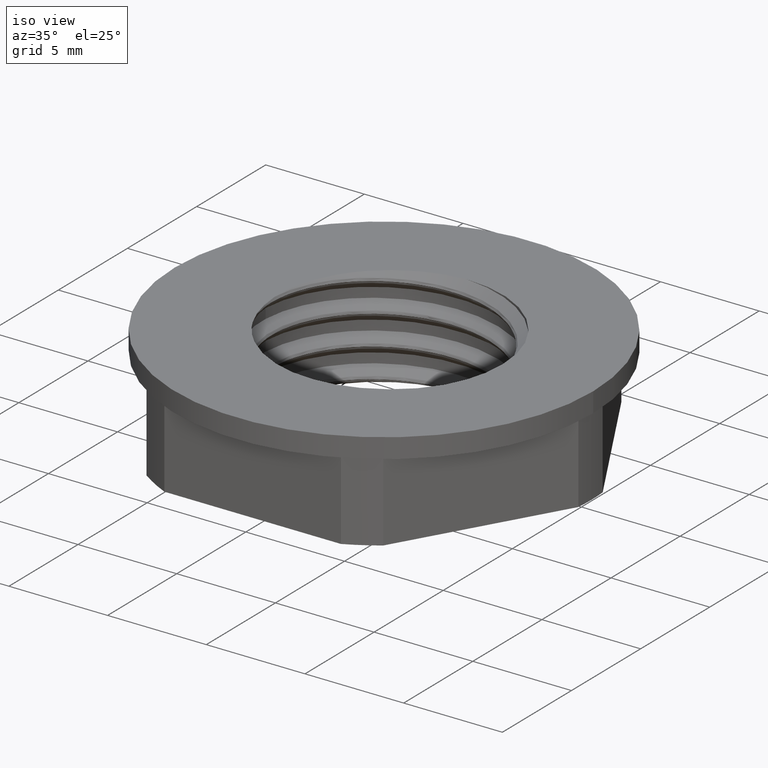
[diagram: clean part render]
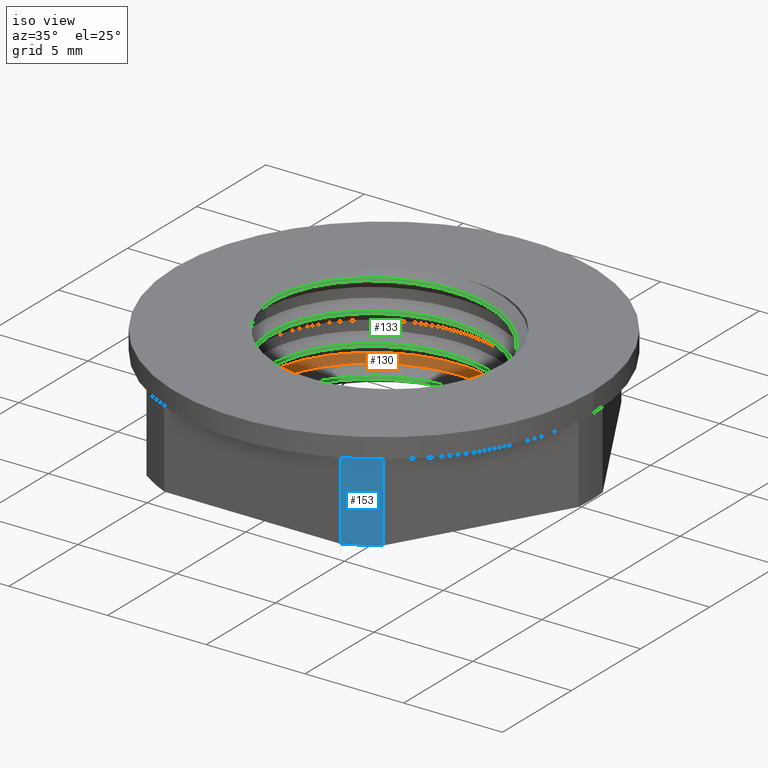
[diagram: same view with three faces highlighted in distinct colors, each labeled with its STEP entity id]
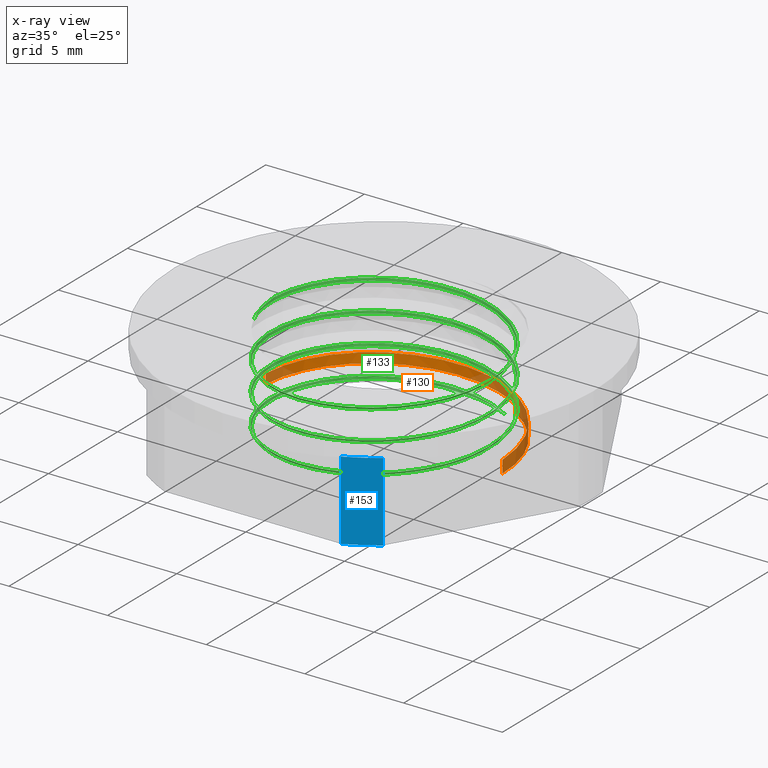
[diagram: x-ray of the same camera — body ghosted, the three highlighted faces saturated]
A machine part, iso view with three faces highlighted in distinct colors.
The next image is the same camera in x-ray (body ghosted, the three faces saturated) — at least one of them is partly hidden behind the body in this view.
Their STEP definitions:

[orange] entity #130 — the highlighted cylindrical surface (partial cylindrical patch) has radius 6 mm, axis along (-0, -0, -1).
#10 = VECTOR ( 'NONE', #358, 1000.000000000000000 ) ;
#11 = AXIS2_PLACEMENT_3D ( 'NONE', #1034, #280, #281 ) ;
#50 = AXIS2_PLACEMENT_3D ( 'NONE', #2236, #2254, #2250 ) ;
#55 = VECTOR ( 'NONE', #2293, 1000.000000000000000 ) ;
#61 = CIRCLE ( 'NONE', #50, 6.000000000000000900 ) ;
#112 = VECTOR ( 'NONE', #1137, 1000.000000000000000 ) ;
#130 = ADVANCED_FACE ( 'NONE', ( #273 ), #1031, .F. ) ;
#132 = EDGE_CURVE ( 'NONE', #846, #827, #338, .T. ) ;
#179 = EDGE_CURVE ( 'NONE', #827, #824, #2610, .T. ) ;
#198 = EDGE_CURVE ( 'NONE', #825, #823, #61, .T. ) ;
#199 = EDGE_CURVE ( 'NONE', #835, #846, #2593, .T. ) ;
#203 = EDGE_CURVE ( 'NONE', #835, #823, #2290, .T. ) ;
#231 = EDGE_CURVE ( 'NONE', #825, #824, #1067, .T. ) ;
#272 = EDGE_LOOP ( 'NONE', ( #987, #279, #1019, #1027, #1004, #308 ) ) ;
#273 = FACE_OUTER_BOUND ( 'NONE', #272, .T. ) ;
#279 = ORIENTED_EDGE ( 'NONE', *, *, #199, .T. ) ;
#280 = DIRECTION ( 'NONE',  ( -0.0000000000000000000, -0.0000000000000000000, -1.000000000000000000 ) ) ;
#281 = DIRECTION ( 'NONE',  ( -1.000000000000000000, 0.0000000000000000000, 0.0000000000000000000 ) ) ;
#308 = ORIENTED_EDGE ( 'NONE', *, *, #198, .T. ) ;
#338 = LINE ( 'NONE', #342, #10 ) ;
#342 = CARTESIAN_POINT ( 'NONE',  ( -6.000000000000000900, 0.0000000000000000000, 10.00000000000000000 ) ) ;
#358 = DIRECTION ( 'NONE',  ( -0.0000000000000000000, -0.0000000000000000000, -1.000000000000000000 ) ) ;
#823 = VERTEX_POINT ( 'NONE', #1216 ) ;
#824 = VERTEX_POINT ( 'NONE', #1223 ) ;
#825 = VERTEX_POINT ( 'NONE', #1235 ) ;
#827 = VERTEX_POINT ( 'NONE', #1267 ) ;
#835 = VERTEX_POINT ( 'NONE', #1246 ) ;
#846 = VERTEX_POINT ( 'NONE', #1250 ) ;
#987 = ORIENTED_EDGE ( 'NONE', *, *, #203, .F. ) ;
#1004 = ORIENTED_EDGE ( 'NONE', *, *, #231, .F. ) ;
#1019 = ORIENTED_EDGE ( 'NONE', *, *, #132, .T. ) ;
#1027 = ORIENTED_EDGE ( 'NONE', *, *, #179, .T. ) ;
#1031 = CYLINDRICAL_SURFACE ( 'NONE', #11, 6.000000000000000900 ) ;
#1034 = CARTESIAN_POINT ( 'NONE',  ( 0.0000000000000000000, 0.0000000000000000000, 10.00000000000000000 ) ) ;
#1067 = LINE ( 'NONE', #1068, #112 ) ;
#1068 = CARTESIAN_POINT ( 'NONE',  ( 3.000123449500724500, 5.196081147148866800, 10.00000000000000000 ) ) ;
#1137 = DIRECTION ( 'NONE',  ( 0.0000000000000000000, 0.0000000000000000000, 1.000000000000000000 ) ) ;
#1216 = CARTESIAN_POINT ( 'NONE',  ( 6.000000000000000900, 7.347880794884120700E-016, 0.0000000000000000000 ) ) ;
#1223 = CARTESIAN_POINT ( 'NONE',  ( 3.000123449500724500, 5.196081147148867700, 0.3745717986213496500 ) ) ;
#1235 = CARTESIAN_POINT ( 'NONE',  ( 3.000123449500725000, 5.196081147148867700, 0.0000000000000000000 ) ) ;
#1246 = CARTESIAN_POINT ( 'NONE',  ( 6.000000000000000900, 1.122276860965852100E-016, 0.6261490073395348200 ) ) ;
#1250 = CARTESIAN_POINT ( 'NONE',  ( -6.000000000000001800, 4.040196699477066700E-015, 1.376149007339533900 ) ) ;
#1267 = CARTESIAN_POINT ( 'NONE',  ( -6.000000000000000900, 3.366830582897556400E-016, 0.8753039482061825100 ) ) ;
#2099 = CARTESIAN_POINT ( 'NONE',  ( -3.953389325572113300, 5.152410731840936000, 0.6558217986213491500 ) ) ;
#2100 = CARTESIAN_POINT ( 'NONE',  ( -6.000000000000000900, 3.366830582897556400E-016, 0.8753039482061824000 ) ) ;
#2122 = CARTESIAN_POINT ( 'NONE',  ( -5.196081147148867700, 3.000123449500725400, 0.7495717986213490400 ) ) ;
#2125 = CARTESIAN_POINT ( 'NONE',  ( -1.552776579205799700, 5.795591850283278400, 0.5620717986213492600 ) ) ;
#2127 = CARTESIAN_POINT ( 'NONE',  ( 3.000123449500724500, 5.196081147148867700, 0.3745717986213496500 ) ) ;
#2134 = CARTESIAN_POINT ( 'NONE',  ( 0.8478361671605135800, 6.438772968725619900, 0.4683217986213495400 ) ) ;
#2147 = CARTESIAN_POINT ( 'NONE',  ( -6.000000000000002700, 1.607771546170717400, 0.8102202966207696600 ) ) ;
#2201 = CARTESIAN_POINT ( 'NONE',  ( -1.552776579205799300, 5.795591850283278400, 1.062916857754700800 ) ) ;
#2202 = CARTESIAN_POINT ( 'NONE',  ( -3.953389325572113300, 5.152410731840936000, 1.156666857754700600 ) ) ;
#2203 = CARTESIAN_POINT ( 'NONE',  ( -5.196081147148867700, 3.000123449500725400, 1.250416857754700400 ) ) ;
#2204 = CARTESIAN_POINT ( 'NONE',  ( -6.000000000000000900, 1.607771546170718900, 1.311065355754121200 ) ) ;
#2205 = CARTESIAN_POINT ( 'NONE',  ( -6.000000000000001800, 4.040196699477066700E-015, 1.376149007339533900 ) ) ;
#2220 = CARTESIAN_POINT ( 'NONE',  ( 6.000000000000000900, 1.122276860965852100E-016, 0.6261490073395348200 ) ) ;
#2221 = CARTESIAN_POINT ( 'NONE',  ( 5.795591850283278400, 1.552776579205798600, 0.6879168577547012400 ) ) ;
#2224 = CARTESIAN_POINT ( 'NONE',  ( 0.8478361671605135800, 6.438772968725619900, 0.9691668577547010200 ) ) ;
#2232 = CARTESIAN_POINT ( 'NONE',  ( 6.000000000000000000, 0.7898424761968216900, 0.6581223512207524700 ) ) ;
#2235 = CARTESIAN_POINT ( 'NONE',  ( 5.152410731840936900, 3.953389325572110600, 0.7816668577547012400 ) ) ;
#2236 = CARTESIAN_POINT ( 'NONE',  ( 0.0000000000000000000, 0.0000000000000000000, 0.0000000000000000000 ) ) ;
#2250 = DIRECTION ( 'NONE',  ( -1.000000000000000000, 0.0000000000000000000, 0.0000000000000000000 ) ) ;
#2251 = CARTESIAN_POINT ( 'NONE',  ( 3.000123449500724500, 5.196081147148867700, 0.8754168577547010200 ) ) ;
#2254 = DIRECTION ( 'NONE',  ( 0.0000000000000000000, 0.0000000000000000000, -1.000000000000000000 ) ) ;
#2283 = CARTESIAN_POINT ( 'NONE',  ( 6.000000000000000900, 7.347880794884120700E-016, 10.00000000000000000 ) ) ;
#2290 = LINE ( 'NONE', #2283, #55 ) ;
#2293 = DIRECTION ( 'NONE',  ( -0.0000000000000000000, -0.0000000000000000000, -1.000000000000000000 ) ) ;
#2593 =( BOUNDED_CURVE ( )  B_SPLINE_CURVE ( 2, ( #2220, #2232, #2221, #2235, #2251, #2224, #2201, #2202, #2203, #2204, #2205 ),
 .UNSPECIFIED., .F., .T. ) 
 B_SPLINE_CURVE_WITH_KNOTS ( ( 3, 2, 2, 2, 2, 3 ),
 ( 0.1666196151937993400, 0.1749999999999999900, 0.2000000000000000100, 0.2250000000000000100, 0.2500000000000000000, 0.2666196151937993400 ),
 .UNSPECIFIED. ) 
 CURVE ( )  GEOMETRIC_REPRESENTATION_ITEM ( )  RATIONAL_B_SPLINE_CURVE ( ( 0.9660737115727577900, 0.9744832476326679100, 1.000000000000000000, 0.9238795325112867400, 1.000000000000000000, 0.9238795325112867400, 1.000000000000000000, 0.9238795325112867400, 1.000000000000000000, 0.9493962848786189300, 0.9660737115727575700 ) ) 
 REPRESENTATION_ITEM ( '' )  );
#2610 =( BOUNDED_CURVE ( )  B_SPLINE_CURVE ( 2, ( #2100, #2147, #2122, #2099, #2125, #2134, #2127 ),
 .UNSPECIFIED., .F., .T. ) 
 B_SPLINE_CURVE_WITH_KNOTS ( ( 3, 2, 2, 3 ),
 ( 0.9333803848062006700, 0.9499999999999999600, 0.9749999999999999800, 1.000000000000000000 ),
 .UNSPECIFIED. ) 
 CURVE ( )  GEOMETRIC_REPRESENTATION_ITEM ( )  RATIONAL_B_SPLINE_CURVE ( ( 0.9660737115727577900, 0.9493962848786188200, 1.000000000000000000, 0.9238795325112867400, 1.000000000000000000, 0.9238795325112867400, 1.000000000000000000 ) ) 
 REPRESENTATION_ITEM ( '' )  );

[blue] entity #153 — the highlighted cylindrical surface (partial cylindrical patch) has radius 10.5 mm, axis along (0, 0, 1).
#23 = AXIS2_PLACEMENT_3D ( 'NONE', #1537, #1560, #1564 ) ;
#91 = AXIS2_PLACEMENT_3D ( 'NONE', #1187, #1190, #1206 ) ;
#99 = AXIS2_PLACEMENT_3D ( 'NONE', #2404, #2393, #2377 ) ;
#102 = CIRCLE ( 'NONE', #91, 10.50000000000000000 ) ;
#107 = CIRCLE ( 'NONE', #99, 10.50000000000000000 ) ;
#110 = VECTOR ( 'NONE', #1209, 1000.000000000000000 ) ;
#114 = VECTOR ( 'NONE', #1229, 1000.000000000000000 ) ;
#153 = ADVANCED_FACE ( 'NONE', ( #1529 ), #1533, .T. ) ;
#220 = EDGE_CURVE ( 'NONE', #871, #900, #107, .T. ) ;
#236 = EDGE_CURVE ( 'NONE', #892, #907, #102, .T. ) ;
#239 = EDGE_CURVE ( 'NONE', #900, #892, #1208, .T. ) ;
#247 = EDGE_CURVE ( 'NONE', #907, #871, #1231, .T. ) ;
#314 = EDGE_LOOP ( 'NONE', ( #1026, #962, #1014, #1022 ) ) ;
#871 = VERTEX_POINT ( 'NONE', #1242 ) ;
#892 = VERTEX_POINT ( 'NONE', #1218 ) ;
#900 = VERTEX_POINT ( 'NONE', #1288 ) ;
#907 = VERTEX_POINT ( 'NONE', #1298 ) ;
#962 = ORIENTED_EDGE ( 'NONE', *, *, #236, .T. ) ;
#1014 = ORIENTED_EDGE ( 'NONE', *, *, #247, .T. ) ;
#1022 = ORIENTED_EDGE ( 'NONE', *, *, #220, .T. ) ;
#1026 = ORIENTED_EDGE ( 'NONE', *, *, #239, .T. ) ;
#1187 = CARTESIAN_POINT ( 'NONE',  ( 0.0000000000000000000, 0.0000000000000000000, 4.000000000000000000 ) ) ;
#1190 = DIRECTION ( 'NONE',  ( -0.0000000000000000000, -0.0000000000000000000, -1.000000000000000000 ) ) ;
#1198 = CARTESIAN_POINT ( 'NONE',  ( 5.991173358452389400, -8.622983346207409000, 0.0000000000000000000 ) ) ;
#1206 = DIRECTION ( 'NONE',  ( 1.000000000000000000, 0.0000000000000000000, 0.0000000000000000000 ) ) ;
#1208 = LINE ( 'NONE', #1198, #110 ) ;
#1209 = DIRECTION ( 'NONE',  ( 0.0000000000000000000, 0.0000000000000000000, 1.000000000000000000 ) ) ;
#1218 = CARTESIAN_POINT ( 'NONE',  ( 5.991173358452393800, -8.622983346207407300, 4.000000000000000000 ) ) ;
#1229 = DIRECTION ( 'NONE',  ( -0.0000000000000000000, 0.0000000000000000000, -1.000000000000000000 ) ) ;
#1231 = LINE ( 'NONE', #1248, #114 ) ;
#1242 = CARTESIAN_POINT ( 'NONE',  ( 4.472135954999546700, -9.500000000000016000, 0.0000000000000000000 ) ) ;
#1248 = CARTESIAN_POINT ( 'NONE',  ( 4.472135954999546700, -9.500000000000016000, 5.000000000000000000 ) ) ;
#1288 = CARTESIAN_POINT ( 'NONE',  ( 5.991173358452390300, -8.622983346207410800, 0.0000000000000000000 ) ) ;
#1298 = CARTESIAN_POINT ( 'NONE',  ( 4.472135954999546700, -9.500000000000016000, 4.000000000000000000 ) ) ;
#1529 = FACE_OUTER_BOUND ( 'NONE', #314, .T. ) ;
#1533 = CYLINDRICAL_SURFACE ( 'NONE', #23, 10.50000000000000000 ) ;
#1537 = CARTESIAN_POINT ( 'NONE',  ( 0.0000000000000000000, 0.0000000000000000000, 0.0000000000000000000 ) ) ;
#1560 = DIRECTION ( 'NONE',  ( 0.0000000000000000000, 0.0000000000000000000, 1.000000000000000000 ) ) ;
#1564 = DIRECTION ( 'NONE',  ( 1.000000000000000000, 0.0000000000000000000, 0.0000000000000000000 ) ) ;
#2377 = DIRECTION ( 'NONE',  ( 1.000000000000000000, 0.0000000000000000000, 0.0000000000000000000 ) ) ;
#2393 = DIRECTION ( 'NONE',  ( 0.0000000000000000000, 0.0000000000000000000, 1.000000000000000000 ) ) ;
#2404 = CARTESIAN_POINT ( 'NONE',  ( 0.0000000000000000000, 0.0000000000000000000, 0.0000000000000000000 ) ) ;

[green] entity #133 — the highlighted face is a freeform B-spline surface patch.
#133 = ADVANCED_FACE ( 'NONE', ( #337 ), #2590, .F. ) ;
#178 = EDGE_CURVE ( 'NONE', #866, #901, #2613, .T. ) ;
#201 = EDGE_CURVE ( 'NONE', #843, #866, #1041, .T. ) ;
#225 = EDGE_CURVE ( 'NONE', #901, #833, #1043, .T. ) ;
#235 = EDGE_CURVE ( 'NONE', #843, #833, #2594, .T. ) ;
#296 = EDGE_LOOP ( 'NONE', ( #856, #857, #870, #953 ) ) ;
#320 = CARTESIAN_POINT ( 'NONE',  ( 4.769055794689133000, 3.659245206378450200, 4.406232500777297100 ) ) ;
#321 = CARTESIAN_POINT ( 'NONE',  ( 2.776905193758120800, 4.809476999057354300, 4.499982500777298000 ) ) ;
#322 = CARTESIAN_POINT ( 'NONE',  ( 0.7847545928271111300, 5.959708791736255200, 4.593732500777297100 ) ) ;
#323 = CARTESIAN_POINT ( 'NONE',  ( 0.7847545928271111300, 5.959708791736255200, 1.593732500777301800 ) ) ;
#324 = CARTESIAN_POINT ( 'NONE',  ( 5.364382293212693200, 1.437245306775669600, 2.812482500777299800 ) ) ;
#325 = CARTESIAN_POINT ( 'NONE',  ( -1.437245306775670500, 5.364382293212693200, 4.687482500777298000 ) ) ;
#326 = CARTESIAN_POINT ( 'NONE',  ( -1.437245306775670500, 5.364382293212693200, 3.187482500777299300 ) ) ;
#327 = CARTESIAN_POINT ( 'NONE',  ( 2.776905193758120800, 4.809476999057354300, -1.749922269615115500E-005 ) ) ;
#328 = CARTESIAN_POINT ( 'NONE',  ( -0.7847545928271130200, -5.959708791736255200, 3.843732500777298400 ) ) ;
#329 = CARTESIAN_POINT ( 'NONE',  ( 5.959708791736254300, -0.7847545928271100200, 4.218732500777298000 ) ) ;
#330 = CARTESIAN_POINT ( 'NONE',  ( -3.659245206378452900, 4.769055794689130300, 4.781232500777297100 ) ) ;
#331 = CARTESIAN_POINT ( 'NONE',  ( -4.809476999057354300, 2.776905193758121300, 4.874982500777297100 ) ) ;
#332 = CARTESIAN_POINT ( 'NONE',  ( -1.437245306775670500, 5.364382293212693200, 1.687482500777301600 ) ) ;
#333 = CARTESIAN_POINT ( 'NONE',  ( -4.809476999057354300, 2.776905193758121300, 1.874982500777301100 ) ) ;
#334 = CARTESIAN_POINT ( 'NONE',  ( -4.769055794689130300, -3.659245206378452900, 0.6562325007773028900 ) ) ;
#335 = CARTESIAN_POINT ( 'NONE',  ( -4.809476999057354300, 2.776905193758121300, 3.374982500777298900 ) ) ;
#336 = CARTESIAN_POINT ( 'NONE',  ( -4.769055794689130300, -3.659245206378452900, 3.656232500777298000 ) ) ;
#337 = FACE_OUTER_BOUND ( 'NONE', #296, .T. ) ;
#339 = CARTESIAN_POINT ( 'NONE',  ( 3.659245206378450600, -4.769055794689132100, 1.031232500777302400 ) ) ;
#340 = CARTESIAN_POINT ( 'NONE',  ( 5.959708791736254300, -0.7847545928271100200, 1.218732500777302000 ) ) ;
#343 = CARTESIAN_POINT ( 'NONE',  ( -2.776905193758121300, -4.809476999057354300, 0.7499825007773027700 ) ) ;
#345 = CARTESIAN_POINT ( 'NONE',  ( -1.437245306775670500, 5.364382293212693200, 0.1874825007773035800 ) ) ;
#346 = CARTESIAN_POINT ( 'NONE',  ( -3.659245206378452900, 4.769055794689130300, 0.2812325007773034400 ) ) ;
#347 = CARTESIAN_POINT ( 'NONE',  ( 5.364382293212693200, 1.437245306775669600, 1.312482500777302000 ) ) ;
#348 = CARTESIAN_POINT ( 'NONE',  ( -5.959708791736254300, 0.7847545928271115700, 1.968732500777301100 ) ) ;
#349 = CARTESIAN_POINT ( 'NONE',  ( -3.659245206378452900, 4.769055794689130300, 1.781232500777301600 ) ) ;
#350 = CARTESIAN_POINT ( 'NONE',  ( 1.437245306775670100, -5.364382293212693200, 0.9374825007773025500 ) ) ;
#351 = CARTESIAN_POINT ( 'NONE',  ( -4.809476999057354300, 2.776905193758121300, 0.3749825007773032700 ) ) ;
#352 = CARTESIAN_POINT ( 'NONE',  ( -0.7847545928271130200, -5.959708791736255200, 0.8437325007773027700 ) ) ;
#353 = CARTESIAN_POINT ( 'NONE',  ( -5.364382293212693200, -1.437245306775670500, 2.062482500777300700 ) ) ;
#354 = CARTESIAN_POINT ( 'NONE',  ( -5.364382293212693200, -1.437245306775670500, 0.5624825007773031100 ) ) ;
#355 = CARTESIAN_POINT ( 'NONE',  ( -2.776905193758121300, -4.809476999057354300, 2.249982500777300700 ) ) ;
#356 = CARTESIAN_POINT ( 'NONE',  ( -0.7847545928271130200, -5.959708791736255200, 2.343732500777300700 ) ) ;
#357 = CARTESIAN_POINT ( 'NONE',  ( 4.809476999057353400, -2.776905193758121700, 2.624982500777299800 ) ) ;
#359 = CARTESIAN_POINT ( 'NONE',  ( 5.959708791736254300, -0.7847545928271100200, 2.718732500777299800 ) ) ;
#360 = CARTESIAN_POINT ( 'NONE',  ( 4.769055794689133000, 3.659245206378450200, 2.906232500777299800 ) ) ;
#361 = CARTESIAN_POINT ( 'NONE',  ( 2.776905193758120800, 4.809476999057354300, 2.999982500777299300 ) ) ;
#362 = CARTESIAN_POINT ( 'NONE',  ( 0.7847545928271111300, 5.959708791736255200, 3.093732500777299300 ) ) ;
#363 = CARTESIAN_POINT ( 'NONE',  ( -5.364382293212693200, -1.437245306775670500, 3.562482500777298400 ) ) ;
#365 = CARTESIAN_POINT ( 'NONE',  ( -5.959708791736254300, 0.7847545928271115700, 0.4687325007773031600 ) ) ;
#366 = CARTESIAN_POINT ( 'NONE',  ( 3.659245206378450600, -4.769055794689132100, 2.531232500777299800 ) ) ;
#367 = CARTESIAN_POINT ( 'NONE',  ( -2.776905193758121300, -4.809476999057354300, 3.749982500777298400 ) ) ;
#368 = CARTESIAN_POINT ( 'NONE',  ( -3.659245206378452900, 4.769055794689130300, 3.281232500777299300 ) ) ;
#369 = CARTESIAN_POINT ( 'NONE',  ( 1.437245306775670100, -5.364382293212693200, 3.937482500777298900 ) ) ;
#370 = CARTESIAN_POINT ( 'NONE',  ( 4.769055794689133000, 3.659245206378450200, 1.406232500777302000 ) ) ;
#371 = CARTESIAN_POINT ( 'NONE',  ( 2.776905193758120800, 4.809476999057354300, 1.499982500777301800 ) ) ;
#372 = CARTESIAN_POINT ( 'NONE',  ( -5.959708791736254300, 0.7847545928271115700, 3.468732500777299800 ) ) ;
#373 = CARTESIAN_POINT ( 'NONE',  ( 4.809476999057353400, -2.776905193758121700, 1.124982500777302200 ) ) ;
#374 = CARTESIAN_POINT ( 'NONE',  ( 3.659245206378450600, -4.769055794689132100, 4.031232500777298000 ) ) ;
#375 = CARTESIAN_POINT ( 'NONE',  ( 4.809476999057353400, -2.776905193758121700, 4.124982500777298000 ) ) ;
#376 = CARTESIAN_POINT ( 'NONE',  ( 5.364382293212693200, 1.437245306775669600, 4.312482500777297100 ) ) ;
#377 = CARTESIAN_POINT ( 'NONE',  ( -4.769055794689130300, -3.659245206378452900, 2.156232500777300200 ) ) ;
#378 = CARTESIAN_POINT ( 'NONE',  ( 0.7847545928271111300, 5.959708791736255200, 0.09373250077730370400 ) ) ;
#380 = CARTESIAN_POINT ( 'NONE',  ( 1.437245306775670100, -5.364382293212693200, 2.437482500777300200 ) ) ;
#381 = CARTESIAN_POINT ( 'NONE',  ( -0.7847545928271130200, -5.959708791736255200, 5.343732500777297100 ) ) ;
#382 = CARTESIAN_POINT ( 'NONE',  ( -4.769055794689130300, -3.659245206378452900, 5.156232500777296200 ) ) ;
#383 = CARTESIAN_POINT ( 'NONE',  ( 1.437245306775670100, -5.364382293212693200, 5.437482500777297100 ) ) ;
#384 = CARTESIAN_POINT ( 'NONE',  ( -5.364382293212693200, -1.437245306775670500, 5.062482500777296200 ) ) ;
#385 = CARTESIAN_POINT ( 'NONE',  ( -5.959708791736254300, 0.7847545928271115700, 4.968732500777297100 ) ) ;
#386 = CARTESIAN_POINT ( 'NONE',  ( -2.776905193758121300, -4.809476999057354300, 5.249982500777296200 ) ) ;
#387 = CARTESIAN_POINT ( 'NONE',  ( 3.659245206378450600, -4.769055794689132100, 5.531232500777295300 ) ) ;
#388 = CARTESIAN_POINT ( 'NONE',  ( 5.959708791736254300, -0.7847545928271100200, 5.718732500777295300 ) ) ;
#389 = CARTESIAN_POINT ( 'NONE',  ( 4.809476999057353400, -2.776905193758121700, 5.624982500777296200 ) ) ;
#390 = CARTESIAN_POINT ( 'NONE',  ( 5.364382293212693200, 1.437245306775669600, 5.812482500777295300 ) ) ;
#391 = CARTESIAN_POINT ( 'NONE',  ( 4.769055794689133000, 3.659245206378450200, 5.906232500777295300 ) ) ;
#392 = CARTESIAN_POINT ( 'NONE',  ( 2.776905193758120800, 4.809476999057354300, 5.999982500777295300 ) ) ;
#393 = CARTESIAN_POINT ( 'NONE',  ( 0.7847545928271111300, 5.959708791736255200, 6.093732500777295300 ) ) ;
#394 = CARTESIAN_POINT ( 'NONE',  ( -1.437245306775670500, 5.364382293212693200, 6.187482500777295300 ) ) ;
#395 = CARTESIAN_POINT ( 'NONE',  ( -3.659245206378452900, 4.769055794689130300, 6.281232500777297100 ) ) ;
#396 = CARTESIAN_POINT ( 'NONE',  ( -4.809476999057354300, 2.776905193758121300, 6.374982500777295300 ) ) ;
#397 = CARTESIAN_POINT ( 'NONE',  ( -5.364382293212693200, -1.437245306775670500, 6.562482500777294400 ) ) ;
#398 = CARTESIAN_POINT ( 'NONE',  ( -2.776905193758121300, -4.809476999057354300, 6.749982500777294400 ) ) ;
#399 = CARTESIAN_POINT ( 'NONE',  ( 1.437245306775670100, -5.364382293212693200, 6.937482500777294400 ) ) ;
#400 = CARTESIAN_POINT ( 'NONE',  ( 3.659245206378450600, -4.769055794689132100, 7.031232500777295300 ) ) ;
#401 = CARTESIAN_POINT ( 'NONE',  ( 4.809476999057353400, -2.776905193758121700, 7.124982500777293600 ) ) ;
#402 = CARTESIAN_POINT ( 'NONE',  ( 5.364382293212693200, 1.437245306775669600, 7.312482500777293600 ) ) ;
#403 = CARTESIAN_POINT ( 'NONE',  ( 4.769055794689133000, 3.659245206378450200, 7.406232500777292700 ) ) ;
#404 = CARTESIAN_POINT ( 'NONE',  ( 2.776905193758120800, 4.809476999057354300, 7.499982500777293600 ) ) ;
#405 = CARTESIAN_POINT ( 'NONE',  ( 2.759638826325341300, 4.779572414193641100, -0.02899271198674650100 ) ) ;
#406 = CARTESIAN_POINT ( 'NONE',  ( -1.428308737528147800, 5.331027392968815400, 0.1585072880132532300 ) ) ;
#407 = CARTESIAN_POINT ( 'NONE',  ( 5.959708791736254300, -0.7847545928271100200, 7.218732500777295300 ) ) ;
#408 = CARTESIAN_POINT ( 'NONE',  ( 0.7798751100220184800, 5.922652243308966100, 0.06475728801325335300 ) ) ;
#409 = CARTESIAN_POINT ( 'NONE',  ( -4.779572414193641100, 2.759638826325341700, 0.3460072880132529800 ) ) ;
#410 = CARTESIAN_POINT ( 'NONE',  ( -3.636492585078313900, 4.739402542628663900, 0.2522572880132530300 ) ) ;
#411 = CARTESIAN_POINT ( 'NONE',  ( -5.922652243308966100, 0.7798751100220184800, 0.4397572880132527000 ) ) ;
#412 = CARTESIAN_POINT ( 'NONE',  ( -4.769055794689130300, -3.659245206378452900, 6.656232500777295300 ) ) ;
#413 = CARTESIAN_POINT ( 'NONE',  ( -5.959708791736254300, 0.7847545928271115700, 6.468732500777296200 ) ) ;
#414 = CARTESIAN_POINT ( 'NONE',  ( -0.7847545928271130200, -5.959708791736255200, 6.843732500777296200 ) ) ;
#415 = CARTESIAN_POINT ( 'NONE',  ( -5.331027392968815400, -1.428308737528147800, 0.5335072880132526500 ) ) ;
#416 = CARTESIAN_POINT ( 'NONE',  ( -4.739402542628663900, -3.636492585078313900, 0.6272572880132524200 ) ) ;
#417 = CARTESIAN_POINT ( 'NONE',  ( 1.428308737528147400, -5.331027392968815400, 5.408507288013244500 ) ) ;
#418 = CARTESIAN_POINT ( 'NONE',  ( -5.922652243308966100, 0.7798751100220184800, 1.939757288013250800 ) ) ;
#419 = CARTESIAN_POINT ( 'NONE',  ( 3.636492585078311600, -4.739402542628665700, 5.502257288013245400 ) ) ;
#420 = CARTESIAN_POINT ( 'NONE',  ( 4.779572414193640200, -2.759638826325342200, 5.596007288013244500 ) ) ;
#421 = CARTESIAN_POINT ( 'NONE',  ( 2.759638826325341300, 4.779572414193641100, 2.971007288013249400 ) ) ;
#422 = CARTESIAN_POINT ( 'NONE',  ( -4.739402542628663900, -3.636492585078313900, 3.627257288013247600 ) ) ;
#423 = CARTESIAN_POINT ( 'NONE',  ( -5.331027392968815400, -1.428308737528147800, 2.033507288013250800 ) ) ;
#424 = CARTESIAN_POINT ( 'NONE',  ( 3.636492585078311600, -4.739402542628665700, 2.502257288013249900 ) ) ;
#425 = CARTESIAN_POINT ( 'NONE',  ( 3.636492585078311600, -4.739402542628665700, 4.002257288013246300 ) ) ;
#426 = CARTESIAN_POINT ( 'NONE',  ( -5.922652243308966100, 0.7798751100220184800, 4.939757288013245400 ) ) ;
#427 = CARTESIAN_POINT ( 'NONE',  ( 5.922652243308965200, -0.7798751100220169300, 2.689757288013249400 ) ) ;
#428 = CARTESIAN_POINT ( 'NONE',  ( 4.739402542628665700, 3.636492585078311600, 1.377257288013251200 ) ) ;
#429 = CARTESIAN_POINT ( 'NONE',  ( -1.428308737528147800, 5.331027392968815400, 3.158507288013248500 ) ) ;
#430 = CARTESIAN_POINT ( 'NONE',  ( -5.922652243308966100, 0.7798751100220184800, 3.439757288013248100 ) ) ;
#431 = CARTESIAN_POINT ( 'NONE',  ( -4.779572414193641100, 2.759638826325341700, 4.846007288013246300 ) ) ;
#432 = CARTESIAN_POINT ( 'NONE',  ( -2.759638826325341700, -4.779572414193641100, 0.7210072880132523100 ) ) ;
#433 = CARTESIAN_POINT ( 'NONE',  ( 1.428308737528147400, -5.331027392968815400, 2.408507288013250300 ) ) ;
#434 = CARTESIAN_POINT ( 'NONE',  ( 4.779572414193640200, -2.759638826325342200, 4.096007288013247200 ) ) ;
#435 = CARTESIAN_POINT ( 'NONE',  ( -3.636492585078313900, 4.739402542628663900, 1.752257288013250800 ) ) ;
#436 = CARTESIAN_POINT ( 'NONE',  ( -4.779572414193641100, 2.759638826325341700, 1.846007288013251000 ) ) ;
#437 = CARTESIAN_POINT ( 'NONE',  ( -4.779572414193641100, 2.759638826325341700, 3.346007288013249000 ) ) ;
#438 = CARTESIAN_POINT ( 'NONE',  ( -0.7798751100220199200, -5.922652243308966100, 0.8147572880132522000 ) ) ;
#439 = CARTESIAN_POINT ( 'NONE',  ( 2.759638826325341300, 4.779572414193641100, 4.471007288013246300 ) ) ;
#440 = CARTESIAN_POINT ( 'NONE',  ( -5.331027392968815400, -1.428308737528147800, 5.033507288013245400 ) ) ;
#441 = CARTESIAN_POINT ( 'NONE',  ( -4.739402542628663900, -3.636492585078313900, 5.127257288013245400 ) ) ;
#442 = CARTESIAN_POINT ( 'NONE',  ( -5.331027392968815400, -1.428308737528147800, 3.533507288013248100 ) ) ;
#443 = CARTESIAN_POINT ( 'NONE',  ( -0.7798751100220199200, -5.922652243308966100, 3.814757288013248100 ) ) ;
#444 = CARTESIAN_POINT ( 'NONE',  ( 5.922652243308965200, -0.7798751100220169300, 5.689757288013245400 ) ) ;
#445 = CARTESIAN_POINT ( 'NONE',  ( 5.331027392968815400, 1.428308737528146500, 2.783507288013249900 ) ) ;
#446 = CARTESIAN_POINT ( 'NONE',  ( 4.779572414193640200, -2.759638826325342200, 2.596007288013249900 ) ) ;
#447 = CARTESIAN_POINT ( 'NONE',  ( -4.739402542628663900, -3.636492585078313900, 2.127257288013250300 ) ) ;
#448 = CARTESIAN_POINT ( 'NONE',  ( 4.779572414193640200, -2.759638826325342200, 1.096007288013251600 ) ) ;
#449 = CARTESIAN_POINT ( 'NONE',  ( 5.331027392968815400, 1.428308737528146500, 1.283507288013251200 ) ) ;
#450 = CARTESIAN_POINT ( 'NONE',  ( 1.428308737528147400, -5.331027392968815400, 0.9085072880132522000 ) ) ;
#451 = CARTESIAN_POINT ( 'NONE',  ( 2.759638826325341300, 4.779572414193641100, 1.471007288013251400 ) ) ;
#452 = CARTESIAN_POINT ( 'NONE',  ( 4.739402542628665700, 3.636492585078311600, 2.877257288013249000 ) ) ;
#453 = CARTESIAN_POINT ( 'NONE',  ( 3.636492585078311600, -4.739402542628665700, 1.002257288013252100 ) ) ;
#454 = CARTESIAN_POINT ( 'NONE',  ( 5.922652243308965200, -0.7798751100220169300, 1.189757288013251400 ) ) ;
#455 = CARTESIAN_POINT ( 'NONE',  ( 0.7798751100220184800, 5.922652243308966100, 1.564757288013251000 ) ) ;
#456 = CARTESIAN_POINT ( 'NONE',  ( -2.759638826325341700, -4.779572414193641100, 2.221007288013250300 ) ) ;
#457 = CARTESIAN_POINT ( 'NONE',  ( -2.759638826325341700, -4.779572414193641100, 3.721007288013248500 ) ) ;
#458 = CARTESIAN_POINT ( 'NONE',  ( -1.428308737528147800, 5.331027392968815400, 1.658507288013251000 ) ) ;
#459 = CARTESIAN_POINT ( 'NONE',  ( -0.7798751100220199200, -5.922652243308966100, 2.314757288013250800 ) ) ;
#460 = CARTESIAN_POINT ( 'NONE',  ( 0.7798751100220184800, 5.922652243308966100, 3.064757288013248500 ) ) ;
#461 = CARTESIAN_POINT ( 'NONE',  ( 1.428308737528147400, -5.331027392968815400, 3.908507288013248100 ) ) ;
#462 = CARTESIAN_POINT ( 'NONE',  ( 0.7798751100220184800, 5.922652243308966100, 4.564757288013247200 ) ) ;
#463 = CARTESIAN_POINT ( 'NONE',  ( -3.636492585078313900, 4.739402542628663900, 3.252257288013248100 ) ) ;
#464 = CARTESIAN_POINT ( 'NONE',  ( -1.428308737528147800, 5.331027392968815400, 4.658507288013246300 ) ) ;
#465 = CARTESIAN_POINT ( 'NONE',  ( 5.331027392968815400, 1.428308737528146500, 4.283507288013246300 ) ) ;
#466 = CARTESIAN_POINT ( 'NONE',  ( -3.636492585078313900, 4.739402542628663900, 4.752257288013245400 ) ) ;
#467 = CARTESIAN_POINT ( 'NONE',  ( 5.922652243308965200, -0.7798751100220169300, 4.189757288013247200 ) ) ;
#468 = CARTESIAN_POINT ( 'NONE',  ( 4.739402542628665700, 3.636492585078311600, 4.377257288013246300 ) ) ;
#469 = CARTESIAN_POINT ( 'NONE',  ( -2.759638826325341700, -4.779572414193641100, 5.221007288013246300 ) ) ;
#470 = CARTESIAN_POINT ( 'NONE',  ( -0.7798751100220199200, -5.922652243308966100, 5.314757288013243700 ) ) ;
#471 = CARTESIAN_POINT ( 'NONE',  ( 1.423378530938648600, -5.312625862759669600, 0.8676532631948388200 ) ) ;
#472 = CARTESIAN_POINT ( 'NONE',  ( -5.902208554665149300, 0.7771831532304710500, 3.398903263194834600 ) ) ;
#473 = CARTESIAN_POINT ( 'NONE',  ( -3.623940215107769100, 4.723043170854189100, 3.211403263194834600 ) ) ;
#474 = CARTESIAN_POINT ( 'NONE',  ( -5.331027392968815400, -1.428308737528147800, 6.533507288013243700 ) ) ;
#475 = CARTESIAN_POINT ( 'NONE',  ( 2.759638826325341300, 4.779572414193641100, 7.471007288013241900 ) ) ;
#476 = CARTESIAN_POINT ( 'NONE',  ( -1.428308737528147800, 5.331027392968815400, 6.158507288013243700 ) ) ;
#477 = CARTESIAN_POINT ( 'NONE',  ( 2.759638826325341300, 4.779572414193641100, 5.971007288013244500 ) ) ;
#478 = CARTESIAN_POINT ( 'NONE',  ( -0.7798751100220199200, -5.922652243308966100, 6.814757288013243700 ) ) ;
#479 = CARTESIAN_POINT ( 'NONE',  ( -0.7771831532304723800, -5.902208554665150200, 0.7739032631948389300 ) ) ;
#480 = CARTESIAN_POINT ( 'NONE',  ( 0.7771831532304707100, 5.902208554665149300, 0.02390326319483993300 ) ) ;
#481 = CARTESIAN_POINT ( 'NONE',  ( -3.623940215107769100, 4.723043170854189100, 0.2114032631948396500 ) ) ;
#482 = CARTESIAN_POINT ( 'NONE',  ( -1.423378530938648600, 5.312625862759669600, 3.117653263194835500 ) ) ;
#483 = CARTESIAN_POINT ( 'NONE',  ( 0.7771831532304707100, 5.902208554665149300, 1.523903263194837500 ) ) ;
#484 = CARTESIAN_POINT ( 'NONE',  ( 5.312625862759669600, 1.423378530938648200, 2.742653263194835500 ) ) ;
#485 = CARTESIAN_POINT ( 'NONE',  ( 4.739402542628665700, 3.636492585078311600, 5.877257288013243700 ) ) ;
#486 = CARTESIAN_POINT ( 'NONE',  ( -4.763074384886459200, 2.750113162042330900, 0.3051532631948394900 ) ) ;
#487 = CARTESIAN_POINT ( 'NONE',  ( -2.750113162042330900, -4.763074384886459200, 0.6801532631948390400 ) ) ;
#488 = CARTESIAN_POINT ( 'NONE',  ( 5.902208554665149300, -0.7771831532304692700, 1.148903263194837900 ) ) ;
#489 = CARTESIAN_POINT ( 'NONE',  ( -5.902208554665149300, 0.7771831532304710500, 1.898903263194837000 ) ) ;
#490 = CARTESIAN_POINT ( 'NONE',  ( 2.750113162042330500, 4.763074384886459200, 2.930153263194835900 ) ) ;
#491 = CARTESIAN_POINT ( 'NONE',  ( -5.312625862759669600, -1.423378530938648600, 0.4926532631948393200 ) ) ;
#492 = CARTESIAN_POINT ( 'NONE',  ( 0.7771831532304707100, 5.902208554665149300, 3.023903263194835900 ) ) ;
#493 = CARTESIAN_POINT ( 'NONE',  ( 1.423378530938648600, -5.312625862759669600, 2.367653263194835900 ) ) ;
#494 = CARTESIAN_POINT ( 'NONE',  ( 4.763074384886458300, -2.750113162042331400, 2.555153263194836400 ) ) ;
#495 = CARTESIAN_POINT ( 'NONE',  ( -4.763074384886459200, 2.750113162042330900, 3.305153263194835500 ) ) ;
#496 = CARTESIAN_POINT ( 'NONE',  ( -5.312625862759669600, -1.423378530938648600, 3.492653263194834600 ) ) ;
#497 = CARTESIAN_POINT ( 'NONE',  ( -3.623940215107769100, 4.723043170854189100, 1.711403263194837300 ) ) ;
#498 = CARTESIAN_POINT ( 'NONE',  ( 5.902208554665149300, -0.7771831532304692700, 2.648903263194836400 ) ) ;
#499 = CARTESIAN_POINT ( 'NONE',  ( 2.750113162042330500, 4.763074384886459200, 1.430153263194837900 ) ) ;
#500 = CARTESIAN_POINT ( 'NONE',  ( -1.423378530938648600, 5.312625862759669600, 0.1176532631948397900 ) ) ;
#501 = CARTESIAN_POINT ( 'NONE',  ( -1.423378530938648600, 5.312625862759669600, 1.617653263194837300 ) ) ;
#502 = CARTESIAN_POINT ( 'NONE',  ( 5.331027392968815400, 1.428308737528146500, 5.783507288013244500 ) ) ;
#503 = CARTESIAN_POINT ( 'NONE',  ( 3.636492585078311600, -4.739402542628665700, 7.002257288013243700 ) ) ;
#504 = CARTESIAN_POINT ( 'NONE',  ( 3.623940215107766900, -4.723043170854190900, 2.461403263194836400 ) ) ;
#505 = CARTESIAN_POINT ( 'NONE',  ( -4.763074384886459200, 2.750113162042330900, 1.805153263194837000 ) ) ;
#506 = CARTESIAN_POINT ( 'NONE',  ( -4.723043170854189100, -3.623940215107769100, 2.086403263194836400 ) ) ;
#507 = CARTESIAN_POINT ( 'NONE',  ( -2.750113162042330900, -4.763074384886459200, 2.180153263194836800 ) ) ;
#508 = CARTESIAN_POINT ( 'NONE',  ( 4.723043170854191800, 3.623940215107766400, 2.836403263194835000 ) ) ;
#509 = CARTESIAN_POINT ( 'NONE',  ( -4.723043170854189100, -3.623940215107769100, 3.586403263194834200 ) ) ;
#510 = CARTESIAN_POINT ( 'NONE',  ( 2.750113162042330500, 4.763074384886459200, -0.06984673680515991700 ) ) ;
#511 = CARTESIAN_POINT ( 'NONE',  ( -5.922652243308966100, 0.7798751100220184800, 6.439757288013243700 ) ) ;
#512 = CARTESIAN_POINT ( 'NONE',  ( -4.739402542628663900, -3.636492585078313900, 6.627257288013241000 ) ) ;
#513 = CARTESIAN_POINT ( 'NONE',  ( 4.739402542628665700, 3.636492585078311600, 7.377257288013241900 ) ) ;
#514 = CARTESIAN_POINT ( 'NONE',  ( -4.723043170854189100, -3.623940215107769100, 0.5864032631948391500 ) ) ;
#515 = CARTESIAN_POINT ( 'NONE',  ( -5.312625862759669600, -1.423378530938648600, 1.992653263194837000 ) ) ;
#516 = CARTESIAN_POINT ( 'NONE',  ( -2.750113162042330900, -4.763074384886459200, 3.680153263194834200 ) ) ;
#517 = CARTESIAN_POINT ( 'NONE',  ( -0.7771831532304723800, -5.902208554665150200, 3.773903263194834200 ) ) ;
#518 = CARTESIAN_POINT ( 'NONE',  ( 1.423378530938648600, -5.312625862759669600, 3.867653263194835000 ) ) ;
#519 = CARTESIAN_POINT ( 'NONE',  ( -3.636492585078313900, 4.739402542628663900, 6.252257288013243700 ) ) ;
#520 = CARTESIAN_POINT ( 'NONE',  ( 3.623940215107766900, -4.723043170854190900, 0.9614032631948384900 ) ) ;
#521 = CARTESIAN_POINT ( 'NONE',  ( -0.7771831532304723800, -5.902208554665150200, 2.273903263194836400 ) ) ;
#522 = CARTESIAN_POINT ( 'NONE',  ( 0.7798751100220184800, 5.922652243308966100, 6.064757288013243700 ) ) ;
#523 = CARTESIAN_POINT ( 'NONE',  ( 4.763074384886458300, -2.750113162042331400, 1.055153263194838600 ) ) ;
#524 = CARTESIAN_POINT ( 'NONE',  ( -2.759638826325341700, -4.779572414193641100, 6.721007288013241900 ) ) ;
#525 = CARTESIAN_POINT ( 'NONE',  ( 5.312625862759669600, 1.423378530938648200, 1.242653263194838200 ) ) ;
#526 = CARTESIAN_POINT ( 'NONE',  ( 4.723043170854191800, 3.623940215107766400, 1.336403263194838200 ) ) ;
#527 = CARTESIAN_POINT ( 'NONE',  ( 4.779572414193640200, -2.759638826325342200, 7.096007288013242800 ) ) ;
#528 = CARTESIAN_POINT ( 'NONE',  ( 5.922652243308965200, -0.7798751100220169300, 7.189757288013241900 ) ) ;
#529 = CARTESIAN_POINT ( 'NONE',  ( 3.623940215107766900, -4.723043170854190900, 3.961403263194833700 ) ) ;
#530 = CARTESIAN_POINT ( 'NONE',  ( 1.428308737528147400, -5.331027392968815400, 6.908507288013243700 ) ) ;
#531 = CARTESIAN_POINT ( 'NONE',  ( -4.779572414193641100, 2.759638826325341700, 6.346007288013244500 ) ) ;
#532 = CARTESIAN_POINT ( 'NONE',  ( 5.331027392968815400, 1.428308737528146500, 7.283507288013241900 ) ) ;
#533 = CARTESIAN_POINT ( 'NONE',  ( -5.902208554665149300, 0.7771831532304710500, 0.3989032631948393700 ) ) ;
#534 = CARTESIAN_POINT ( 'NONE',  ( 5.902208554665150200, -0.7771831532304693800, 1.103825834309455600 ) ) ;
#535 = CARTESIAN_POINT ( 'NONE',  ( 4.723043170854191800, 3.623940215107766900, 1.291325834309455100 ) ) ;
#536 = CARTESIAN_POINT ( 'NONE',  ( -1.423378530938648600, 5.312625862759669600, 6.117653263194831000 ) ) ;
#537 = CARTESIAN_POINT ( 'NONE',  ( 3.623940215107766900, -4.723043170854190900, 5.461403263194830200 ) ) ;
#538 = CARTESIAN_POINT ( 'NONE',  ( 4.763074384886458300, -2.750113162042331400, 4.055153263194834600 ) ) ;
#539 = CARTESIAN_POINT ( 'NONE',  ( 0.7771831532304707100, 5.902208554665150200, -0.02117416569054305500 ) ) ;
#540 = CARTESIAN_POINT ( 'NONE',  ( -5.902208554665150200, 0.7771831532304711600, 0.3538258343094564700 ) ) ;
#541 = CARTESIAN_POINT ( 'NONE',  ( 5.312625862759669600, 1.423378530938648200, 7.242653263194830200 ) ) ;
#542 = CARTESIAN_POINT ( 'NONE',  ( 5.902208554665149300, -0.7771831532304692700, 5.648903263194831000 ) ) ;
#543 = CARTESIAN_POINT ( 'NONE',  ( -4.723043170854190000, -3.623940215107770000, 0.5413258343094561300 ) ) ;
#544 = CARTESIAN_POINT ( 'NONE',  ( 3.623940215107767300, -4.723043170854190900, 0.9163258343094556900 ) ) ;
#545 = CARTESIAN_POINT ( 'NONE',  ( 4.723043170854191800, 3.623940215107766400, 7.336403263194829300 ) ) ;
#546 = CARTESIAN_POINT ( 'NONE',  ( 2.750113162042330500, 4.763074384886459200, 7.430153263194829300 ) ) ;
#547 = CARTESIAN_POINT ( 'NONE',  ( 5.902208554665149300, -0.7771831532304692700, 7.148903263194829300 ) ) ;
#548 = CARTESIAN_POINT ( 'NONE',  ( -4.763074384886460100, 2.750113162042330900, 0.2600758343094565800 ) ) ;
#549 = CARTESIAN_POINT ( 'NONE',  ( 5.312625862759670500, 1.423378530938648200, 1.197575834309455400 ) ) ;
#550 = CARTESIAN_POINT ( 'NONE',  ( -1.423378530938649100, 5.312625862759670500, 0.07257583430945681300 ) ) ;
#551 = CARTESIAN_POINT ( 'NONE',  ( 0.7771831532304707100, 5.902208554665150200, 1.478825834309454700 ) ) ;
#552 = CARTESIAN_POINT ( 'NONE',  ( 0.7771831532304707100, 5.902208554665149300, 4.523903263194833700 ) ) ;
#553 = CARTESIAN_POINT ( 'NONE',  ( -4.723043170854189100, -3.623940215107769100, 5.086403263194832800 ) ) ;
#554 = CARTESIAN_POINT ( 'NONE',  ( 4.723043170854191800, 3.623940215107766400, 5.836403263194831000 ) ) ;
#555 = CARTESIAN_POINT ( 'NONE',  ( -1.423378530938649100, 5.312625862759670500, 1.572575834309454700 ) ) ;
#556 = CARTESIAN_POINT ( 'NONE',  ( 4.763074384886458300, -2.750113162042331400, 5.555153263194831000 ) ) ;
#557 = CARTESIAN_POINT ( 'NONE',  ( 0.7771831532304707100, 5.902208554665149300, 6.023903263194831900 ) ) ;
#558 = CARTESIAN_POINT ( 'NONE',  ( -4.763074384886459200, 2.750113162042330900, 6.305153263194830200 ) ) ;
#559 = CARTESIAN_POINT ( 'NONE',  ( -5.312625862759669600, -1.423378530938648600, 6.492653263194831000 ) ) ;
#560 = CARTESIAN_POINT ( 'NONE',  ( -4.723043170854189100, -3.623940215107769100, 6.586403263194831000 ) ) ;
#561 = CARTESIAN_POINT ( 'NONE',  ( -0.7771831532304723800, -5.902208554665150200, 6.773903263194829300 ) ) ;
#562 = CARTESIAN_POINT ( 'NONE',  ( -3.623940215107770400, 4.723043170854190000, 1.666325834309454700 ) ) ;
#563 = CARTESIAN_POINT ( 'NONE',  ( -3.623940215107769100, 4.723043170854189100, 6.211403263194830200 ) ) ;
#564 = CARTESIAN_POINT ( 'NONE',  ( 5.312625862759669600, 1.423378530938648200, 5.742653263194831000 ) ) ;
#565 = CARTESIAN_POINT ( 'NONE',  ( 4.723043170854191800, 3.623940215107766400, 4.336403263194832800 ) ) ;
#566 = CARTESIAN_POINT ( 'NONE',  ( -5.902208554665149300, 0.7771831532304710500, 6.398903263194831000 ) ) ;
#567 = CARTESIAN_POINT ( 'NONE',  ( -3.623940215107770400, 4.723043170854190000, 0.1663258343094566900 ) ) ;
#568 = CARTESIAN_POINT ( 'NONE',  ( 2.750113162042330500, 4.763074384886460100, 1.385075834309454900 ) ) ;
#569 = CARTESIAN_POINT ( 'NONE',  ( -5.902208554665150200, 0.7771831532304711600, 1.853825834309454900 ) ) ;
#570 = CARTESIAN_POINT ( 'NONE',  ( -5.312625862759670500, -1.423378530938649100, 1.947575834309454200 ) ) ;
#571 = CARTESIAN_POINT ( 'NONE',  ( -3.623940215107769100, 4.723043170854189100, 4.711403263194833700 ) ) ;
#572 = CARTESIAN_POINT ( 'NONE',  ( 4.763074384886458300, -2.750113162042331400, 7.055153263194830200 ) ) ;
#573 = CARTESIAN_POINT ( 'NONE',  ( 1.423378530938648600, -5.312625862759670500, 0.8225758343094556900 ) ) ;
#574 = CARTESIAN_POINT ( 'NONE',  ( -5.902208554665149300, 0.7771831532304710500, 4.898903263194832800 ) ) ;
#575 = CARTESIAN_POINT ( 'NONE',  ( -0.7771831532304723800, -5.902208554665150200, 5.273903263194832800 ) ) ;
#576 = CARTESIAN_POINT ( 'NONE',  ( 4.763074384886459200, -2.750113162042331400, 1.010075834309455600 ) ) ;
#577 = CARTESIAN_POINT ( 'NONE',  ( 1.423378530938648600, -5.312625862759669600, 6.867653263194829300 ) ) ;
#578 = CARTESIAN_POINT ( 'NONE',  ( -4.763074384886460100, 2.750113162042330900, 1.760075834309454500 ) ) ;
#579 = CARTESIAN_POINT ( 'NONE',  ( -4.723043170854190000, -3.623940215107770000, 2.041325834309453600 ) ) ;
#580 = CARTESIAN_POINT ( 'NONE',  ( 5.902208554665149300, -0.7771831532304692700, 4.148903263194834600 ) ) ;
#581 = CARTESIAN_POINT ( 'NONE',  ( -5.312625862759669600, -1.423378530938648600, 4.992653263194831900 ) ) ;
#582 = CARTESIAN_POINT ( 'NONE',  ( -1.423378530938648600, 5.312625862759669600, 4.617653263194834600 ) ) ;
#583 = CARTESIAN_POINT ( 'NONE',  ( -4.763074384886459200, 2.750113162042330900, 4.805153263194833700 ) ) ;
#584 = CARTESIAN_POINT ( 'NONE',  ( -2.750113162042330900, -4.763074384886459200, 6.680153263194831000 ) ) ;
#585 = CARTESIAN_POINT ( 'NONE',  ( 3.623940215107766900, -4.723043170854190900, 6.961403263194829300 ) ) ;
#586 = CARTESIAN_POINT ( 'NONE',  ( 1.423378530938648600, -5.312625862759669600, 5.367653263194833700 ) ) ;
#587 = CARTESIAN_POINT ( 'NONE',  ( -5.312625862759670500, -1.423378530938649100, 0.4475758343094563000 ) ) ;
#588 = CARTESIAN_POINT ( 'NONE',  ( 2.750113162042330500, 4.763074384886459200, 5.930153263194832800 ) ) ;
#589 = CARTESIAN_POINT ( 'NONE',  ( 5.312625862759669600, 1.423378530938648200, 4.242653263194832800 ) ) ;
#590 = CARTESIAN_POINT ( 'NONE',  ( 2.750113162042330500, 4.763074384886460100, -0.1149241656905429200 ) ) ;
#591 = CARTESIAN_POINT ( 'NONE',  ( 2.750113162042330500, 4.763074384886459200, 4.430153263194833700 ) ) ;
#592 = CARTESIAN_POINT ( 'NONE',  ( -2.750113162042330900, -4.763074384886459200, 5.180153263194832800 ) ) ;
#593 = CARTESIAN_POINT ( 'NONE',  ( -2.750113162042330900, -4.763074384886460100, 0.6350758343094560200 ) ) ;
#594 = CARTESIAN_POINT ( 'NONE',  ( -0.7771831532304724900, -5.902208554665151000, 0.7288258343094558000 ) ) ;
#595 = CARTESIAN_POINT ( 'NONE',  ( -3.623940215107770400, 4.723043170854190000, 4.666325834309450500 ) ) ;
#596 = CARTESIAN_POINT ( 'NONE',  ( 4.763074384886459200, -2.750113162042331400, 4.010075834309451400 ) ) ;
#597 = CARTESIAN_POINT ( 'NONE',  ( -5.902208554665150200, 0.7771831532304711600, 4.853825834309450500 ) ) ;
#598 = CARTESIAN_POINT ( 'NONE',  ( 5.902208554665150200, -0.7771831532304693800, 4.103825834309451400 ) ) ;
#599 = CARTESIAN_POINT ( 'NONE',  ( -1.423378530938649100, 5.312625862759670500, 4.572575834309451400 ) ) ;
#600 = CARTESIAN_POINT ( 'NONE',  ( -5.312625862759670500, -1.423378530938649100, 3.447575834309451800 ) ) ;
#601 = CARTESIAN_POINT ( 'NONE',  ( -4.763074384886460100, 2.750113162042330900, 4.760075834309450500 ) ) ;
#602 = CARTESIAN_POINT ( 'NONE',  ( 4.723043170854191800, 3.623940215107766900, 2.791325834309452700 ) ) ;
#603 = CARTESIAN_POINT ( 'NONE',  ( 3.623940215107767300, -4.723043170854190900, 2.416325834309452700 ) ) ;
#604 = CARTESIAN_POINT ( 'NONE',  ( -0.7771831532304724900, -5.902208554665151000, 2.228825834309454000 ) ) ;
#605 = CARTESIAN_POINT ( 'NONE',  ( 2.750113162042330500, 4.763074384886460100, 2.885075834309452700 ) ) ;
#606 = CARTESIAN_POINT ( 'NONE',  ( 5.312625862759670500, 1.423378530938648200, 2.697575834309453100 ) ) ;
#607 = CARTESIAN_POINT ( 'NONE',  ( -2.750113162042330900, -4.763074384886460100, 2.135075834309453600 ) ) ;
#608 = CARTESIAN_POINT ( 'NONE',  ( 1.423378530938648600, -5.312625862759670500, 2.322575834309453600 ) ) ;
#609 = CARTESIAN_POINT ( 'NONE',  ( 4.763074384886459200, -2.750113162042331400, 2.510075834309453100 ) ) ;
#610 = CARTESIAN_POINT ( 'NONE',  ( 5.902208554665150200, -0.7771831532304693800, 2.603825834309453100 ) ) ;
#611 = CARTESIAN_POINT ( 'NONE',  ( 0.7771831532304707100, 5.902208554665150200, 2.978825834309452200 ) ) ;
#612 = CARTESIAN_POINT ( 'NONE',  ( -1.423378530938649100, 5.312625862759670500, 3.072575834309452200 ) ) ;
#613 = CARTESIAN_POINT ( 'NONE',  ( -3.623940215107770400, 4.723043170854190000, 3.166325834309452700 ) ) ;
#614 = CARTESIAN_POINT ( 'NONE',  ( -4.763074384886460100, 2.750113162042330900, 3.260075834309452200 ) ) ;
#615 = CARTESIAN_POINT ( 'NONE',  ( -5.902208554665150200, 0.7771831532304711600, 3.353825834309452700 ) ) ;
#616 = CARTESIAN_POINT ( 'NONE',  ( -4.723043170854190000, -3.623940215107770000, 3.541325834309452200 ) ) ;
#617 = CARTESIAN_POINT ( 'NONE',  ( -2.750113162042330900, -4.763074384886460100, 3.635075834309451800 ) ) ;
#618 = CARTESIAN_POINT ( 'NONE',  ( -0.7771831532304724900, -5.902208554665151000, 3.728825834309451800 ) ) ;
#619 = CARTESIAN_POINT ( 'NONE',  ( 1.423378530938648600, -5.312625862759670500, 3.822575834309451800 ) ) ;
#620 = CARTESIAN_POINT ( 'NONE',  ( 3.623940215107767300, -4.723043170854190900, 3.916325834309451400 ) ) ;
#621 = CARTESIAN_POINT ( 'NONE',  ( 5.312625862759670500, 1.423378530938648200, 4.197575834309450500 ) ) ;
#622 = CARTESIAN_POINT ( 'NONE',  ( 4.723043170854191800, 3.623940215107766900, 4.291325834309451400 ) ) ;
#623 = CARTESIAN_POINT ( 'NONE',  ( 2.750113162042330500, 4.763074384886460100, 4.385075834309451400 ) ) ;
#624 = CARTESIAN_POINT ( 'NONE',  ( 0.7771831532304707100, 5.902208554665150200, 4.478825834309450500 ) ) ;
#625 = CARTESIAN_POINT ( 'NONE',  ( -4.723043170854190000, -3.623940215107770000, 5.041325834309449600 ) ) ;
#626 = CARTESIAN_POINT ( 'NONE',  ( -1.423378530938649100, 5.312625862759670500, 6.072575834309448700 ) ) ;
#627 = CARTESIAN_POINT ( 'NONE',  ( -4.763074384886460100, 2.750113162042330900, 6.260075834309448700 ) ) ;
#629 = CARTESIAN_POINT ( 'NONE',  ( 1.423378530938648600, -5.312625862759670500, 5.322575834309450500 ) ) ;
#630 = CARTESIAN_POINT ( 'NONE',  ( 5.312625862759670500, 1.423378530938648200, 5.697575834309448700 ) ) ;
#631 = CARTESIAN_POINT ( 'NONE',  ( -3.623940215107770400, 4.723043170854190000, 6.166325834309447800 ) ) ;
#634 = CARTESIAN_POINT ( 'NONE',  ( 1.423378530938648600, -5.312625862759670500, 6.822575834309447800 ) ) ;
#636 = CARTESIAN_POINT ( 'NONE',  ( 5.312625862759670500, 1.423378530938648200, 7.197575834309446900 ) ) ;
#637 = CARTESIAN_POINT ( 'NONE',  ( 2.750113162042330500, 4.763074384886460100, 7.385075834309446900 ) ) ;
#638 = CARTESIAN_POINT ( 'NONE',  ( 4.763074384886459200, -2.750113162042331400, 5.510075834309449600 ) ) ;
#639 = CARTESIAN_POINT ( 'NONE',  ( 3.623940215107767300, -4.723043170854190900, 6.916325834309448700 ) ) ;
#641 = CARTESIAN_POINT ( 'NONE',  ( -0.7771831532304724900, -5.902208554665151000, 5.228825834309449600 ) ) ;
#642 = CARTESIAN_POINT ( 'NONE',  ( 3.623940215107767300, -4.723043170854190900, 5.416325834309448700 ) ) ;
#643 = CARTESIAN_POINT ( 'NONE',  ( 2.750113162042330500, 4.763074384886460100, 5.885075834309448700 ) ) ;
#644 = CARTESIAN_POINT ( 'NONE',  ( 0.7771831532304707100, 5.902208554665150200, 5.978825834309448700 ) ) ;
#645 = CARTESIAN_POINT ( 'NONE',  ( 4.723043170854191800, 3.623940215107766900, 5.791325834309448700 ) ) ;
#646 = CARTESIAN_POINT ( 'NONE',  ( -5.902208554665150200, 0.7771831532304711600, 6.353825834309448700 ) ) ;
#647 = CARTESIAN_POINT ( 'NONE',  ( -5.312625862759670500, -1.423378530938649100, 6.447575834309447800 ) ) ;
#648 = CARTESIAN_POINT ( 'NONE',  ( -4.723043170854190000, -3.623940215107770000, 6.541325834309448700 ) ) ;
#649 = CARTESIAN_POINT ( 'NONE',  ( -0.7771831532304724900, -5.902208554665151000, 6.728825834309449600 ) ) ;
#650 = CARTESIAN_POINT ( 'NONE',  ( 4.763074384886459200, -2.750113162042331400, 7.010075834309446900 ) ) ;
#651 = CARTESIAN_POINT ( 'NONE',  ( -2.750113162042330900, -4.763074384886460100, 6.635075834309447800 ) ) ;
#652 = CARTESIAN_POINT ( 'NONE',  ( 5.902208554665150200, -0.7771831532304693800, 7.103825834309447800 ) ) ;
#653 = CARTESIAN_POINT ( 'NONE',  ( 5.902208554665150200, -0.7771831532304693800, 5.603825834309448700 ) ) ;
#654 = CARTESIAN_POINT ( 'NONE',  ( -2.750113162042330900, -4.763074384886460100, 5.135075834309449600 ) ) ;
#655 = CARTESIAN_POINT ( 'NONE',  ( 4.723043170854191800, 3.623940215107766900, 7.291325834309446000 ) ) ;
#656 = CARTESIAN_POINT ( 'NONE',  ( -5.312625862759670500, -1.423378530938649100, 4.947575834309449600 ) ) ;
#833 = VERTEX_POINT ( 'NONE', #1274 ) ;
#843 = VERTEX_POINT ( 'NONE', #1271 ) ;
#856 = ORIENTED_EDGE ( 'NONE', *, *, #225, .F. ) ;
#857 = ORIENTED_EDGE ( 'NONE', *, *, #178, .F. ) ;
#866 = VERTEX_POINT ( 'NONE', #1237 ) ;
#870 = ORIENTED_EDGE ( 'NONE', *, *, #201, .F. ) ;
#901 = VERTEX_POINT ( 'NONE', #1294 ) ;
#953 = ORIENTED_EDGE ( 'NONE', *, *, #235, .T. ) ;
#1041 = B_SPLINE_CURVE_WITH_KNOTS ( 'NONE', 3,
 ( #2186, #2223, #2297, #2288, #2270, #2276 ),
 .UNSPECIFIED., .F., .F.,
 ( 4, 2, 4 ),
 ( 5.434005713344057700E-018, 0.001322685642509079500, 0.002645371285018153700 ),
 .UNSPECIFIED. ) ;
#1043 = B_SPLINE_CURVE_WITH_KNOTS ( 'NONE', 3,
 ( #2369, #2383, #2374, #2370, #2396, #2397 ),
 .UNSPECIFIED., .F., .F.,
 ( 4, 2, 4 ),
 ( 0.0000000000000000000, 0.001346768400128100900, 0.002693536800256201900 ),
 .UNSPECIFIED. ) ;
#1108 = CARTESIAN_POINT ( 'NONE',  ( -5.364382293212693200, -1.437245306775670500, 2.062482500777301100 ) ) ;
#1110 = CARTESIAN_POINT ( 'NONE',  ( 0.7845116428169338600, 5.959643699663614000, 0.09374275125636930000 ) ) ;
#1115 = CARTESIAN_POINT ( 'NONE',  ( -4.809476999057354300, 2.776905193758121300, 0.3749825007773035000 ) ) ;
#1116 = CARTESIAN_POINT ( 'NONE',  ( 3.659245206378451100, -4.769055794689133000, 1.031232500777302700 ) ) ;
#1117 = CARTESIAN_POINT ( 'NONE',  ( -4.769055794689130300, -3.659245206378452900, 2.156232500777300700 ) ) ;
#1120 = CARTESIAN_POINT ( 'NONE',  ( -2.776905193758121300, -4.809476999057354300, 2.249982500777301100 ) ) ;
#1121 = CARTESIAN_POINT ( 'NONE',  ( -0.7847545928271130200, -5.959708791736255200, 2.343732500777301100 ) ) ;
#1126 = CARTESIAN_POINT ( 'NONE',  ( 0.7847545928271111300, 5.959708791736255200, 1.593732500777301600 ) ) ;
#1127 = CARTESIAN_POINT ( 'NONE',  ( 1.437245306775670100, -5.364382293212693200, 2.437482500777300700 ) ) ;
#1128 = CARTESIAN_POINT ( 'NONE',  ( 3.659245206378451100, -4.769055794689133000, 2.531232500777300200 ) ) ;
#1129 = CARTESIAN_POINT ( 'NONE',  ( 4.769055794689133000, 3.659245206378450600, 1.406232500777302000 ) ) ;
#1131 = CARTESIAN_POINT ( 'NONE',  ( 4.809476999057353400, -2.776905193758121700, 2.624982500777300200 ) ) ;
#1132 = CARTESIAN_POINT ( 'NONE',  ( 5.959708791736255200, -0.7847545928271099100, 2.718732500777300700 ) ) ;
#1138 = CARTESIAN_POINT ( 'NONE',  ( -5.364382293212693200, -1.437245306775670500, 0.5624825007773033300 ) ) ;
#1140 = CARTESIAN_POINT ( 'NONE',  ( 4.809476999057353400, -2.776905193758121700, 1.124982500777302400 ) ) ;
#1141 = CARTESIAN_POINT ( 'NONE',  ( 5.364382293212693200, 1.437245306775669600, 1.312482500777302200 ) ) ;
#1143 = CARTESIAN_POINT ( 'NONE',  ( 2.776905193758120800, 4.809476999057354300, 1.499982500777302000 ) ) ;
#1145 = CARTESIAN_POINT ( 'NONE',  ( 2.776533339817862400, 4.809691681642640000, 0.0000000000000000000 ) ) ;
#1148 = CARTESIAN_POINT ( 'NONE',  ( -1.437245306775670500, 5.364382293212693200, 0.1874825007773038000 ) ) ;
#1151 = CARTESIAN_POINT ( 'NONE',  ( 1.437245306775670100, -5.364382293212693200, 0.9374825007773027700 ) ) ;
#1153 = CARTESIAN_POINT ( 'NONE',  ( -1.437245306775670500, 5.364382293212693200, 1.687482500777301800 ) ) ;
#1154 = CARTESIAN_POINT ( 'NONE',  ( -3.659245206378452900, 4.769055794689130300, 1.781232500777301800 ) ) ;
#1156 = CARTESIAN_POINT ( 'NONE',  ( -4.809476999057354300, 2.776905193758121300, 1.874982500777301300 ) ) ;
#1157 = CARTESIAN_POINT ( 'NONE',  ( -3.659245206378452900, 4.769055794689130300, 0.2812325007773036600 ) ) ;
#1159 = CARTESIAN_POINT ( 'NONE',  ( -5.959708791736255200, 0.7847545928271116900, 1.968732500777301600 ) ) ;
#1160 = CARTESIAN_POINT ( 'NONE',  ( -4.769055794689130300, -3.659245206378452900, 0.6562325007773032200 ) ) ;
#1161 = CARTESIAN_POINT ( 'NONE',  ( -2.776905193758121300, -4.809476999057354300, 0.7499825007773030000 ) ) ;
#1162 = CARTESIAN_POINT ( 'NONE',  ( 5.959708791736255200, -0.7847545928271099100, 1.218732500777302400 ) ) ;
#1163 = CARTESIAN_POINT ( 'NONE',  ( -5.959708791736255200, 0.7847545928271116900, 0.4687325007773034400 ) ) ;
#1164 = CARTESIAN_POINT ( 'NONE',  ( -0.7847545928271130200, -5.959708791736255200, 0.8437325007773027700 ) ) ;
#1166 = CARTESIAN_POINT ( 'NONE',  ( 4.809476999057353400, -2.776905193758121700, 4.124982500777298000 ) ) ;
#1171 = CARTESIAN_POINT ( 'NONE',  ( 4.769055794689133000, 3.659245206378450600, 4.406232500777298000 ) ) ;
#1173 = CARTESIAN_POINT ( 'NONE',  ( 2.776905193758120800, 4.809476999057354300, 2.999982500777299800 ) ) ;
#1174 = CARTESIAN_POINT ( 'NONE',  ( -0.7847545928271130200, -5.959708791736255200, 3.843732500777298900 ) ) ;
#1175 = CARTESIAN_POINT ( 'NONE',  ( -4.809476999057354300, 2.776905193758121300, 3.374982500777299300 ) ) ;
#1178 = CARTESIAN_POINT ( 'NONE',  ( 2.776905193758120800, 4.809476999057354300, 4.499982500777298000 ) ) ;
#1182 = CARTESIAN_POINT ( 'NONE',  ( 1.437245306775670100, -5.364382293212693200, 3.937482500777298900 ) ) ;
#1183 = CARTESIAN_POINT ( 'NONE',  ( -5.553557827898206500, 0.01633743471645050400, 5.000000000000000900 ) ) ;
#1184 = CARTESIAN_POINT ( 'NONE',  ( -1.437245306775670500, 5.364382293212693200, 3.187482500777299800 ) ) ;
#1185 = CARTESIAN_POINT ( 'NONE',  ( 5.364382293212693200, 1.437245306775669600, 4.312482500777297100 ) ) ;
#1186 = CARTESIAN_POINT ( 'NONE',  ( 4.769055794689133000, 3.659245206378450600, 2.906232500777299800 ) ) ;
#1188 = CARTESIAN_POINT ( 'NONE',  ( 0.7847545928271111300, 5.959708791736255200, 3.093732500777299300 ) ) ;
#1189 = CARTESIAN_POINT ( 'NONE',  ( -5.549205763440566500, 1.495727685127602700, 4.935274323784042000 ) ) ;
#1191 = CARTESIAN_POINT ( 'NONE',  ( -3.659245206378452900, 4.769055794689130300, 3.281232500777299800 ) ) ;
#1192 = CARTESIAN_POINT ( 'NONE',  ( -5.364382293212693200, -1.437245306775670500, 3.562482500777298900 ) ) ;
#1193 = CARTESIAN_POINT ( 'NONE',  ( -4.769055794689130300, -3.659245206378452900, 3.656232500777298900 ) ) ;
#1194 = CARTESIAN_POINT ( 'NONE',  ( -4.809476999057354300, 2.776905193758121300, 4.874982500777297100 ) ) ;
#1197 = CARTESIAN_POINT ( 'NONE',  ( -5.959708791736255200, 0.7847545928271116900, 3.468732500777299800 ) ) ;
#1202 = CARTESIAN_POINT ( 'NONE',  ( 0.7847545928271111300, 5.959708791736255200, 4.593732500777298000 ) ) ;
#1204 = CARTESIAN_POINT ( 'NONE',  ( -1.437245306775670500, 5.364382293212693200, 4.687482500777298000 ) ) ;
#1207 = CARTESIAN_POINT ( 'NONE',  ( -2.776905193758121300, -4.809476999057354300, 3.749982500777298900 ) ) ;
#1211 = CARTESIAN_POINT ( 'NONE',  ( 5.364382293212693200, 1.437245306775669600, 2.812482500777300200 ) ) ;
#1212 = CARTESIAN_POINT ( 'NONE',  ( 5.959708791736255200, -0.7847545928271099100, 4.218732500777298000 ) ) ;
#1214 = CARTESIAN_POINT ( 'NONE',  ( 3.659245206378451100, -4.769055794689133000, 4.031232500777298000 ) ) ;
#1215 = CARTESIAN_POINT ( 'NONE',  ( -3.659245206378452900, 4.769055794689130300, 4.781232500777297100 ) ) ;
#1237 = CARTESIAN_POINT ( 'NONE',  ( 0.2440288266693160000, 5.494583690485967500, -7.881967576506803400E-015 ) ) ;
#1271 = CARTESIAN_POINT ( 'NONE',  ( 2.776533339817862400, 4.809691681642640000, 0.0000000000000000000 ) ) ;
#1274 = CARTESIAN_POINT ( 'NONE',  ( -5.553557827898206500, 0.01633743471645050400, 5.000000000000000900 ) ) ;
#1294 = CARTESIAN_POINT ( 'NONE',  ( -4.865778953292774200, -2.564019340350825800, 5.000000000000000000 ) ) ;
#2007 = CARTESIAN_POINT ( 'NONE',  ( 0.2440288266693160000, 5.494583690485967500, -7.881967576506803400E-015 ) ) ;
#2012 = CARTESIAN_POINT ( 'NONE',  ( -0.6037116772387970400, 5.532234062587308500, 0.03765576454400717400 ) ) ;
#2021 = CARTESIAN_POINT ( 'NONE',  ( -1.423378530938649100, 5.312625862759670500, 0.07257583430945681300 ) ) ;
#2022 = CARTESIAN_POINT ( 'NONE',  ( -3.623940215107770000, 4.723043170854190900, 0.1663258343094566900 ) ) ;
#2023 = CARTESIAN_POINT ( 'NONE',  ( -4.763074384886460100, 2.750113162042330900, 0.2600758343094565800 ) ) ;
#2046 = CARTESIAN_POINT ( 'NONE',  ( -2.750113162042330900, -4.763074384886460100, 2.135075834309453600 ) ) ;
#2047 = CARTESIAN_POINT ( 'NONE',  ( 5.312625862759670500, 1.423378530938648200, 2.697575834309453100 ) ) ;
#2048 = CARTESIAN_POINT ( 'NONE',  ( -2.750113162042330900, -4.763074384886460100, 3.635075834309451800 ) ) ;
#2049 = CARTESIAN_POINT ( 'NONE',  ( 3.623940215107767300, -4.723043170854191800, 0.9163258343094556900 ) ) ;
#2050 = CARTESIAN_POINT ( 'NONE',  ( -5.312625862759670500, -1.423378530938649100, 4.947575834309449600 ) ) ;
#2051 = CARTESIAN_POINT ( 'NONE',  ( -4.723043170854190900, -3.623940215107769500, 0.5413258343094561300 ) ) ;
#2052 = CARTESIAN_POINT ( 'NONE',  ( -5.902208554665150200, 0.7771831532304711600, 0.3538258343094564100 ) ) ;
#2053 = CARTESIAN_POINT ( 'NONE',  ( 5.312625862759670500, 1.423378530938648200, 1.197575834309455400 ) ) ;
#2054 = CARTESIAN_POINT ( 'NONE',  ( -0.7771831532304724900, -5.902208554665151000, 3.728825834309451800 ) ) ;
#2055 = CARTESIAN_POINT ( 'NONE',  ( 1.423378530938648600, -5.312625862759670500, 2.322575834309453600 ) ) ;
#2056 = CARTESIAN_POINT ( 'NONE',  ( 4.763074384886459200, -2.750113162042331400, 2.510075834309453100 ) ) ;
#2057 = CARTESIAN_POINT ( 'NONE',  ( 2.750113162042330500, 4.763074384886460100, 4.385075834309451400 ) ) ;
#2058 = CARTESIAN_POINT ( 'NONE',  ( -5.902208554665150200, 0.7771831532304711600, 1.853825834309454700 ) ) ;
#2059 = CARTESIAN_POINT ( 'NONE',  ( -5.312625862759670500, -1.423378530938649100, 1.947575834309454200 ) ) ;
#2060 = CARTESIAN_POINT ( 'NONE',  ( 5.902208554665150200, -0.7771831532304693800, 2.603825834309453100 ) ) ;
#2061 = CARTESIAN_POINT ( 'NONE',  ( 3.623940215107767300, -4.723043170854191800, 3.916325834309451400 ) ) ;
#2062 = CARTESIAN_POINT ( 'NONE',  ( 5.312625862759670500, 1.423378530938648200, 4.197575834309450500 ) ) ;
#2063 = CARTESIAN_POINT ( 'NONE',  ( -4.763074384886460100, 2.750113162042330900, 4.760075834309450500 ) ) ;
#2064 = CARTESIAN_POINT ( 'NONE',  ( -5.902208554665150200, 0.7771831532304711600, 4.853825834309450500 ) ) ;
#2065 = CARTESIAN_POINT ( 'NONE',  ( -4.865778953292774200, -2.564019340350825800, 5.000000000000000000 ) ) ;
#2066 = CARTESIAN_POINT ( 'NONE',  ( 5.902208554665150200, -0.7771831532304693800, 4.103825834309451400 ) ) ;
#2067 = CARTESIAN_POINT ( 'NONE',  ( -4.723043170854190900, -3.623940215107769500, 3.541325834309451400 ) ) ;
#2068 = CARTESIAN_POINT ( 'NONE',  ( -4.763074384886460100, 2.750113162042330900, 3.260075834309452200 ) ) ;
#2069 = CARTESIAN_POINT ( 'NONE',  ( -4.723043170854190900, -3.623940215107769500, 2.041325834309453600 ) ) ;
#2070 = CARTESIAN_POINT ( 'NONE',  ( 3.623940215107767300, -4.723043170854191800, 2.416325834309453100 ) ) ;
#2071 = CARTESIAN_POINT ( 'NONE',  ( 2.750113162042330500, 4.763074384886460100, 2.885075834309452700 ) ) ;
#2072 = CARTESIAN_POINT ( 'NONE',  ( 2.750113162042330500, 4.763074384886460100, 1.385075834309454900 ) ) ;
#2073 = CARTESIAN_POINT ( 'NONE',  ( -3.623940215107770000, 4.723043170854190900, 3.166325834309452700 ) ) ;
#2074 = CARTESIAN_POINT ( 'NONE',  ( -5.902208554665150200, 0.7771831532304711600, 3.353825834309453100 ) ) ;
#2075 = CARTESIAN_POINT ( 'NONE',  ( 4.723043170854192700, 3.623940215107766900, 4.291325834309450500 ) ) ;
#2076 = CARTESIAN_POINT ( 'NONE',  ( -1.423378530938649100, 5.312625862759670500, 4.572575834309451400 ) ) ;
#2077 = CARTESIAN_POINT ( 'NONE',  ( -0.7771831532304724900, -5.902208554665151000, 2.228825834309454000 ) ) ;
#2078 = CARTESIAN_POINT ( 'NONE',  ( 1.423378530938648600, -5.312625862759670500, 0.8225758343094556900 ) ) ;
#2079 = CARTESIAN_POINT ( 'NONE',  ( 4.763074384886459200, -2.750113162042331400, 1.010075834309455600 ) ) ;
#2080 = CARTESIAN_POINT ( 'NONE',  ( -4.763074384886460100, 2.750113162042330900, 1.760075834309454500 ) ) ;
#2081 = CARTESIAN_POINT ( 'NONE',  ( -1.423378530938649100, 5.312625862759670500, 3.072575834309452200 ) ) ;
#2082 = CARTESIAN_POINT ( 'NONE',  ( 0.7771831532304707100, 5.902208554665150200, 4.478825834309450500 ) ) ;
#2083 = CARTESIAN_POINT ( 'NONE',  ( 4.723043170854192700, 3.623940215107766900, 2.791325834309452700 ) ) ;
#2084 = CARTESIAN_POINT ( 'NONE',  ( -2.750113162042330900, -4.763074384886460100, 0.6350758343094560200 ) ) ;
#2085 = CARTESIAN_POINT ( 'NONE',  ( -5.312625862759670500, -1.423378530938649100, 3.447575834309451800 ) ) ;
#2086 = CARTESIAN_POINT ( 'NONE',  ( 1.423378530938648600, -5.312625862759670500, 3.822575834309451800 ) ) ;
#2087 = CARTESIAN_POINT ( 'NONE',  ( -5.312625862759670500, -1.423378530938649100, 0.4475758343094563000 ) ) ;
#2088 = CARTESIAN_POINT ( 'NONE',  ( 4.763074384886459200, -2.750113162042331400, 4.010075834309451400 ) ) ;
#2089 = CARTESIAN_POINT ( 'NONE',  ( 5.902208554665150200, -0.7771831532304693800, 1.103825834309455400 ) ) ;
#2090 = CARTESIAN_POINT ( 'NONE',  ( -3.623940215107770000, 4.723043170854190900, 4.666325834309450500 ) ) ;
#2091 = CARTESIAN_POINT ( 'NONE',  ( -5.153115245037994900, -2.018736838425633500, 4.972939741046733500 ) ) ;
#2092 = CARTESIAN_POINT ( 'NONE',  ( 0.7771831532304707100, 5.902208554665150200, 1.478825834309454900 ) ) ;
#2093 = CARTESIAN_POINT ( 'NONE',  ( -1.423378530938649100, 5.312625862759670500, 1.572575834309454700 ) ) ;
#2094 = CARTESIAN_POINT ( 'NONE',  ( 0.7771831532304707100, 5.902208554665150200, 2.978825834309452200 ) ) ;
#2095 = CARTESIAN_POINT ( 'NONE',  ( 4.723043170854192700, 3.623940215107766900, 1.291325834309455100 ) ) ;
#2096 = CARTESIAN_POINT ( 'NONE',  ( -0.7771831532304724900, -5.902208554665151000, 0.7288258343094558000 ) ) ;
#2097 = CARTESIAN_POINT ( 'NONE',  ( -3.623940215107770000, 4.723043170854190900, 1.666325834309454900 ) ) ;
#2186 = CARTESIAN_POINT ( 'NONE',  ( 2.776533339817862400, 4.809691681642640000, 0.0000000000000000000 ) ) ;
#2223 = CARTESIAN_POINT ( 'NONE',  ( 2.384366253903141200, 5.011378566289870700, -3.385423730368186700E-033 ) ) ;
#2270 = CARTESIAN_POINT ( 'NONE',  ( 0.6846201446607403900, 5.475015878177219800, 4.710899443585748700E-016 ) ) ;
#2276 = CARTESIAN_POINT ( 'NONE',  ( 0.2440288266693160000, 5.494583690485967500, -7.881967576506803400E-015 ) ) ;
#2288 = CARTESIAN_POINT ( 'NONE',  ( 1.122118884810318500, 5.406107253009197100, -3.305197074905106300E-017 ) ) ;
#2297 = CARTESIAN_POINT ( 'NONE',  ( 1.972624607583595600, 5.174478714206606400, -3.305197074905105100E-017 ) ) ;
#2369 = CARTESIAN_POINT ( 'NONE',  ( -4.865778953292774200, -2.564019340350825800, 5.000000000000000000 ) ) ;
#2370 = CARTESIAN_POINT ( 'NONE',  ( -5.467197656885004700, -0.8780970239852001800, 4.999999999999997300 ) ) ;
#2374 = CARTESIAN_POINT ( 'NONE',  ( -5.238606529041100600, -1.746130615914982100, 4.999999999999997300 ) ) ;
#2383 = CARTESIAN_POINT ( 'NONE',  ( -5.075120447049205700, -2.166748766630604000, 5.000000000000000000 ) ) ;
#2396 = CARTESIAN_POINT ( 'NONE',  ( -5.531499481230265600, -0.4320799786785254900, 4.999999999999999100 ) ) ;
#2397 = CARTESIAN_POINT ( 'NONE',  ( -5.553557827898206500, 0.01633743471645050400, 5.000000000000000900 ) ) ;
#2590 =( BOUNDED_SURFACE ( )  B_SPLINE_SURFACE ( 3, 2, ( 
 ( #327, #378, #345, #346, #351, #365, #354, #334, #343, #352, #350, #339, #373, #340, #347, #370, #371, #323, #332, #349, #333, #348, #353, #377, #355, #356, #380, #366, #357, #359, #324, #360, #361, #362, #326, #368, #335, #372, #363, #336, #367, #328, #369, #374, #375, #329, #376, #320, #321, #322, #325, #330, #331, #385, #384, #382, #386, #381, #383, #387, #389, #388, #390, #391, #392, #393, #394, #395, #396, #413, #397, #412, #398, #414, #399, #400, #401, #407, #402, #403, #404 ),
 ( #405, #408, #406, #410, #409, #411, #415, #416, #432, #438, #450, #453, #448, #454, #449, #428, #451, #455, #458, #435, #436, #418, #423, #447, #456, #459, #433, #424, #446, #427, #445, #452, #421, #460, #429, #463, #437, #430, #442, #422, #457, #443, #461, #425, #434, #467, #465, #468, #439, #462, #464, #466, #431, #426, #440, #441, #469, #470, #417, #419, #420, #444, #502, #485, #477, #522, #476, #519, #531, #511, #474, #512, #524, #478, #530, #503, #527, #528, #532, #513, #475 ),
 ( #510, #480, #500, #481, #486, #533, #491, #514, #487, #479, #471, #520, #523, #488, #525, #526, #499, #483, #501, #497, #505, #489, #515, #506, #507, #521, #493, #504, #494, #498, #484, #508, #490, #492, #482, #473, #495, #472, #496, #509, #516, #517, #518, #529, #538, #580, #589, #565, #591, #552, #582, #571, #583, #574, #581, #553, #592, #575, #586, #537, #556, #542, #564, #554, #588, #557, #536, #563, #558, #566, #559, #560, #584, #561, #577, #585, #572, #547, #541, #545, #546 ),
 ( #590, #539, #550, #567, #548, #540, #587, #543, #593, #594, #573, #544, #576, #534, #549, #535, #568, #551, #555, #562, #578, #569, #570, #579, #607, #604, #608, #603, #609, #610, #606, #602, #605, #611, #612, #613, #614, #615, #600, #616, #617, #618, #619, #620, #596, #598, #621, #622, #623, #624, #599, #595, #601, #597, #656, #625, #654, #641, #629, #642, #638, #653, #630, #645, #643, #644, #626, #631, #627, #646, #647, #648, #651, #649, #634, #639, #650, #652, #636, #655, #637 ) ),
 .UNSPECIFIED., .F., .F., .T. ) 
 B_SPLINE_SURFACE_WITH_KNOTS ( ( 4, 4 ),
 ( 3, 2, 2, 2, 2, 2, 2, 2, 2, 2, 2, 2, 2, 2, 2, 2, 2, 2, 2, 2, 2, 2, 2, 2, 2, 2, 2, 2, 2, 2, 2, 2, 2, 2, 2, 2, 2, 2, 2, 2, 3 ),
 ( 0.0000000000000000000, 1.000000000000000000 ),
 ( 0.0000000000000000000, 0.02500000000000000100, 0.05000000000000000300, 0.07499999999999999700, 0.1000000000000000100, 0.1250000000000000000, 0.1499999999999999900, 0.1749999999999999900, 0.2000000000000000100, 0.2250000000000000100, 0.2500000000000000000, 0.2750000000000000200, 0.2999999999999999900, 0.3250000000000000100, 0.3499999999999999800, 0.3750000000000000000, 0.4000000000000000200, 0.4249999999999999900, 0.4500000000000000100, 0.4749999999999999800, 0.5000000000000000000, 0.5250000000000000200, 0.5500000000000000400, 0.5749999999999999600, 0.5999999999999999800, 0.6250000000000000000, 0.6500000000000000200, 0.6750000000000000400, 0.6999999999999999600, 0.7249999999999999800, 0.7500000000000000000, 0.7750000000000000200, 0.8000000000000000400, 0.8249999999999999600, 0.8499999999999999800, 0.8750000000000000000, 0.9000000000000000200, 0.9250000000000000400, 0.9499999999999999600, 0.9749999999999999800, 1.000000000000000000 ),
 .UNSPECIFIED. ) 
 GEOMETRIC_REPRESENTATION_ITEM ( )  RATIONAL_B_SPLINE_SURFACE ( (
 ( 1.000000000000000000, 0.9238795325112867400, 1.000000000000000000, 0.9238795325112867400, 1.000000000000000000, 0.9238795325112867400, 1.000000000000000000, 0.9238795325112867400, 1.000000000000000000, 0.9238795325112867400, 1.000000000000000000, 0.9238795325112867400, 1.000000000000000000, 0.9238795325112867400, 1.000000000000000000, 0.9238795325112867400, 1.000000000000000000, 0.9238795325112867400, 1.000000000000000000, 0.9238795325112867400, 1.000000000000000000, 0.9238795325112867400, 1.000000000000000000, 0.9238795325112867400, 1.000000000000000000, 0.9238795325112867400, 1.000000000000000000, 0.9238795325112867400, 1.000000000000000000, 0.9238795325112867400, 1.000000000000000000, 0.9238795325112867400, 1.000000000000000000, 0.9238795325112867400, 1.000000000000000000, 0.9238795325112867400, 1.000000000000000000, 0.9238795325112867400, 1.000000000000000000, 0.9238795325112867400, 1.000000000000000000, 0.9238795325112867400, 1.000000000000000000, 0.9238795325112867400, 1.000000000000000000, 0.9238795325112867400, 1.000000000000000000, 0.9238795325112867400, 1.000000000000000000, 0.9238795325112867400, 1.000000000000000000, 0.9238795325112867400, 1.000000000000000000, 0.9238795325112867400, 1.000000000000000000, 0.9238795325112867400, 1.000000000000000000, 0.9238795325112867400, 1.000000000000000000, 0.9238795325112867400, 1.000000000000000000, 0.9238795325112867400, 1.000000000000000000, 0.9238795325112867400, 1.000000000000000000, 0.9238795325112867400, 1.000000000000000000, 0.9238795325112867400, 1.000000000000000000, 0.9238795325112867400, 1.000000000000000000, 0.9238795325112867400, 1.000000000000000000, 0.9238795325112867400, 1.000000000000000000, 0.9238795325112867400, 1.000000000000000000, 0.9238795325112867400, 1.000000000000000000, 0.9238795325112867400, 1.000000000000000000),
 ( 0.9375385246911001100, 0.8661726539029350700, 0.9375385246911001100, 0.8661726539029350700, 0.9375385246911001100, 0.8661726539029350700, 0.9375385246911001100, 0.8661726539029350700, 0.9375385246911001100, 0.8661726539029350700, 0.9375385246911001100, 0.8661726539029350700, 0.9375385246911001100, 0.8661726539029350700, 0.9375385246911001100, 0.8661726539029350700, 0.9375385246911001100, 0.8661726539029350700, 0.9375385246911001100, 0.8661726539029350700, 0.9375385246911001100, 0.8661726539029350700, 0.9375385246911001100, 0.8661726539029350700, 0.9375385246911001100, 0.8661726539029350700, 0.9375385246911001100, 0.8661726539029350700, 0.9375385246911001100, 0.8661726539029350700, 0.9375385246911001100, 0.8661726539029350700, 0.9375385246911001100, 0.8661726539029350700, 0.9375385246911001100, 0.8661726539029350700, 0.9375385246911001100, 0.8661726539029350700, 0.9375385246911001100, 0.8661726539029350700, 0.9375385246911001100, 0.8661726539029350700, 0.9375385246911001100, 0.8661726539029350700, 0.9375385246911001100, 0.8661726539029350700, 0.9375385246911001100, 0.8661726539029350700, 0.9375385246911001100, 0.8661726539029350700, 0.9375385246911001100, 0.8661726539029350700, 0.9375385246911001100, 0.8661726539029350700, 0.9375385246911001100, 0.8661726539029350700, 0.9375385246911001100, 0.8661726539029350700, 0.9375385246911001100, 0.8661726539029350700, 0.9375385246911001100, 0.8661726539029350700, 0.9375385246911001100, 0.8661726539029350700, 0.9375385246911001100, 0.8661726539029350700, 0.9375385246911001100, 0.8661726539029350700, 0.9375385246911001100, 0.8661726539029350700, 0.9375385246911001100, 0.8661726539029350700, 0.9375385246911001100, 0.8661726539029350700, 0.9375385246911001100, 0.8661726539029350700, 0.9375385246911001100, 0.8661726539029350700, 0.9375385246911001100, 0.8661726539029350700, 0.9375385246911001100),
 ( 0.9375385246911001100, 0.8661726539029350700, 0.9375385246911001100, 0.8661726539029350700, 0.9375385246911001100, 0.8661726539029350700, 0.9375385246911001100, 0.8661726539029350700, 0.9375385246911001100, 0.8661726539029350700, 0.9375385246911001100, 0.8661726539029350700, 0.9375385246911001100, 0.8661726539029350700, 0.9375385246911001100, 0.8661726539029350700, 0.9375385246911001100, 0.8661726539029350700, 0.9375385246911001100, 0.8661726539029350700, 0.9375385246911001100, 0.8661726539029350700, 0.9375385246911001100, 0.8661726539029350700, 0.9375385246911001100, 0.8661726539029350700, 0.9375385246911001100, 0.8661726539029350700, 0.9375385246911001100, 0.8661726539029350700, 0.9375385246911001100, 0.8661726539029350700, 0.9375385246911001100, 0.8661726539029350700, 0.9375385246911001100, 0.8661726539029350700, 0.9375385246911001100, 0.8661726539029350700, 0.9375385246911001100, 0.8661726539029350700, 0.9375385246911001100, 0.8661726539029350700, 0.9375385246911001100, 0.8661726539029350700, 0.9375385246911001100, 0.8661726539029350700, 0.9375385246911001100, 0.8661726539029350700, 0.9375385246911001100, 0.8661726539029350700, 0.9375385246911001100, 0.8661726539029350700, 0.9375385246911001100, 0.8661726539029350700, 0.9375385246911001100, 0.8661726539029350700, 0.9375385246911001100, 0.8661726539029350700, 0.9375385246911001100, 0.8661726539029350700, 0.9375385246911001100, 0.8661726539029350700, 0.9375385246911001100, 0.8661726539029350700, 0.9375385246911001100, 0.8661726539029350700, 0.9375385246911001100, 0.8661726539029350700, 0.9375385246911001100, 0.8661726539029350700, 0.9375385246911001100, 0.8661726539029350700, 0.9375385246911001100, 0.8661726539029350700, 0.9375385246911001100, 0.8661726539029350700, 0.9375385246911001100, 0.8661726539029350700, 0.9375385246911001100, 0.8661726539029350700, 0.9375385246911001100),
 ( 1.000000000000000000, 0.9238795325112867400, 1.000000000000000000, 0.9238795325112867400, 1.000000000000000000, 0.9238795325112867400, 1.000000000000000000, 0.9238795325112867400, 1.000000000000000000, 0.9238795325112867400, 1.000000000000000000, 0.9238795325112867400, 1.000000000000000000, 0.9238795325112867400, 1.000000000000000000, 0.9238795325112867400, 1.000000000000000000, 0.9238795325112867400, 1.000000000000000000, 0.9238795325112867400, 1.000000000000000000, 0.9238795325112867400, 1.000000000000000000, 0.9238795325112867400, 1.000000000000000000, 0.9238795325112867400, 1.000000000000000000, 0.9238795325112867400, 1.000000000000000000, 0.9238795325112867400, 1.000000000000000000, 0.9238795325112867400, 1.000000000000000000, 0.9238795325112867400, 1.000000000000000000, 0.9238795325112867400, 1.000000000000000000, 0.9238795325112867400, 1.000000000000000000, 0.9238795325112867400, 1.000000000000000000, 0.9238795325112867400, 1.000000000000000000, 0.9238795325112867400, 1.000000000000000000, 0.9238795325112867400, 1.000000000000000000, 0.9238795325112867400, 1.000000000000000000, 0.9238795325112867400, 1.000000000000000000, 0.9238795325112867400, 1.000000000000000000, 0.9238795325112867400, 1.000000000000000000, 0.9238795325112867400, 1.000000000000000000, 0.9238795325112867400, 1.000000000000000000, 0.9238795325112867400, 1.000000000000000000, 0.9238795325112867400, 1.000000000000000000, 0.9238795325112867400, 1.000000000000000000, 0.9238795325112867400, 1.000000000000000000, 0.9238795325112867400, 1.000000000000000000, 0.9238795325112867400, 1.000000000000000000, 0.9238795325112867400, 1.000000000000000000, 0.9238795325112867400, 1.000000000000000000, 0.9238795325112867400, 1.000000000000000000, 0.9238795325112867400, 1.000000000000000000, 0.9238795325112867400, 1.000000000000000000) ) ) 
 REPRESENTATION_ITEM ( '' )  SURFACE ( )  );
#2594 =( BOUNDED_CURVE ( )  B_SPLINE_CURVE ( 2, ( #1145, #1110, #1148, #1157, #1115, #1163, #1138, #1160, #1161, #1164, #1151, #1116, #1140, #1162, #1141, #1129, #1143, #1126, #1153, #1154, #1156, #1159, #1108, #1117, #1120, #1121, #1127, #1128, #1131, #1132, #1211, #1186, #1173, #1188, #1184, #1191, #1175, #1197, #1192, #1193, #1207, #1174, #1182, #1214, #1166, #1212, #1185, #1171, #1178, #1202, #1204, #1215, #1194, #1189, #1183 ),
 .UNSPECIFIED., .F., .T. ) 
 B_SPLINE_CURVE_WITH_KNOTS ( ( 3, 2, 2, 2, 2, 2, 2, 2, 2, 2, 2, 2, 2, 2, 2, 2, 2, 2, 2, 2, 2, 2, 2, 2, 2, 2, 2, 3 ),
 ( 2.525409767227689200E-006, 0.02499999999999999800, 0.05000000000000000300, 0.07499999999999999700, 0.1000000000000000100, 0.1250000000000000000, 0.1499999999999999900, 0.1749999999999999900, 0.2000000000000000100, 0.2250000000000000300, 0.2500000000000000000, 0.2750000000000000200, 0.2999999999999999900, 0.3250000000000000100, 0.3499999999999999800, 0.3750000000000000000, 0.4000000000000000800, 0.4250000000000000400, 0.4500000000000000100, 0.4749999999999999800, 0.5000000000000000000, 0.5250000000000000200, 0.5500000000000000400, 0.5749999999999999600, 0.5999999999999999800, 0.6250000000000000000, 0.6500000000000000200, 0.6665267933119190000 ),
 .UNSPECIFIED. ) 
 CURVE ( )  GEOMETRIC_REPRESENTATION_ITEM ( )  RATIONAL_B_SPLINE_CURVE ( ( 0.9999846227237473300, 0.9238872219261700100, 1.000000000000000000, 0.9238795325112867400, 1.000000000000000000, 0.9238795325112867400, 1.000000000000000000, 0.9238795325112867400, 1.000000000000000000, 0.9238795325112867400, 1.000000000000000000, 0.9238795325112867400, 1.000000000000000000, 0.9238795325112867400, 1.000000000000000000, 0.9238795325112867400, 1.000000000000000000, 0.9238795325112867400, 1.000000000000000000, 0.9238795325112867400, 1.000000000000000000, 0.9238795325112867400, 1.000000000000000000, 0.9238795325112867400, 1.000000000000000000, 0.9238795325112867400, 1.000000000000000000, 0.9238795325112867400, 1.000000000000000000, 0.9238795325112867400, 1.000000000000000000, 0.9238795325112867400, 1.000000000000000000, 0.9238795325112867400, 1.000000000000000000, 0.9238795325112867400, 1.000000000000000000, 0.9238795325112867400, 1.000000000000000000, 0.9238795325112867400, 1.000000000000000000, 0.9238795325112867400, 1.000000000000000000, 0.9238795325112867400, 1.000000000000000000, 0.9238795325112867400, 1.000000000000000000, 0.9238795325112867400, 1.000000000000000000, 0.9238795325112867400, 1.000000000000000000, 0.9238795325112867400, 1.000000000000000000, 0.9496789106802955300, 0.9658895207539803800 ) ) 
 REPRESENTATION_ITEM ( '' )  );
#2613 =( BOUNDED_CURVE ( )  B_SPLINE_CURVE ( 2, ( #2007, #2012, #2021, #2022, #2023, #2052, #2087, #2051, #2084, #2096, #2078, #2049, #2079, #2089, #2053, #2095, #2072, #2092, #2093, #2097, #2080, #2058, #2059, #2069, #2046, #2077, #2055, #2070, #2056, #2060, #2047, #2083, #2071, #2094, #2081, #2073, #2068, #2074, #2085, #2067, #2048, #2054, #2086, #2061, #2088, #2066, #2062, #2075, #2057, #2082, #2076, #2090, #2063, #2064, #2050, #2091, #2065 ),
 .UNSPECIFIED., .F., .T. ) 
 B_SPLINE_CURVE_WITH_KNOTS ( ( 3, 2, 2, 2, 2, 2, 2, 2, 2, 2, 2, 2, 2, 2, 2, 2, 2, 2, 2, 2, 2, 2, 2, 2, 2, 2, 2, 2, 3 ),
 ( 0.01522086066940782700, 0.02500000000000000100, 0.05000000000000000300, 0.07499999999999999700, 0.1000000000000000100, 0.1249999999999999900, 0.1499999999999999900, 0.1749999999999999900, 0.2000000000000000100, 0.2250000000000000100, 0.2499999999999999700, 0.2750000000000000200, 0.2999999999999999900, 0.3250000000000000100, 0.3499999999999999800, 0.3750000000000000000, 0.4000000000000000200, 0.4249999999999999900, 0.4500000000000000100, 0.4749999999999999800, 0.5000000000000001100, 0.5250000000000000200, 0.5500000000000000400, 0.5749999999999999600, 0.5999999999999999800, 0.6250000000000000000, 0.6500000000000000200, 0.6750000000000000400, 0.6821613510865888200 ),
 .UNSPECIFIED. ) 
 CURVE ( )  GEOMETRIC_REPRESENTATION_ITEM ( )  RATIONAL_B_SPLINE_CURVE ( ( 0.9637430498468389000, 0.9702242937007223800, 1.000000000000000000, 0.9238795325112867400, 1.000000000000000000, 0.9238795325112867400, 1.000000000000000000, 0.9238795325112867400, 1.000000000000000000, 0.9238795325112867400, 1.000000000000000000, 0.9238795325112867400, 1.000000000000000000, 0.9238795325112867400, 1.000000000000000000, 0.9238795325112867400, 1.000000000000000000, 0.9238795325112867400, 1.000000000000000000, 0.9238795325112867400, 1.000000000000000000, 0.9238795325112867400, 1.000000000000000000, 0.9238795325112867400, 1.000000000000000000, 0.9238795325112867400, 1.000000000000000000, 0.9238795325112867400, 1.000000000000000000, 0.9238795325112867400, 1.000000000000000000, 0.9238795325112867400, 1.000000000000000000, 0.9238795325112867400, 1.000000000000000000, 0.9238795325112867400, 1.000000000000000000, 0.9238795325112867400, 1.000000000000000000, 0.9238795325112867400, 1.000000000000000000, 0.9238795325112867400, 1.000000000000000000, 0.9238795325112867400, 1.000000000000000000, 0.9238795325112867400, 1.000000000000000000, 0.9238795325112867400, 1.000000000000000000, 0.9238795325112867400, 1.000000000000000000, 0.9238795325112867400, 1.000000000000000000, 0.9238795325112867400, 1.000000000000000000, 0.9781949842975221600, 0.9688822384265662900 ) ) 
 REPRESENTATION_ITEM ( '' )  );